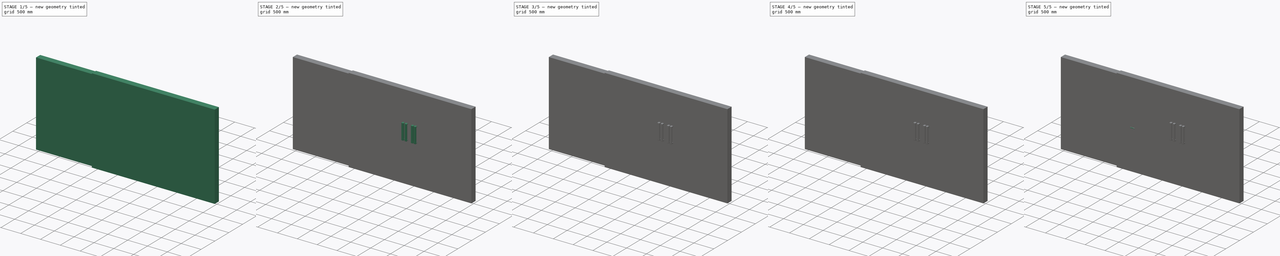
[diagram: build sequence overview — one tinted view per stage of 5, left to right]
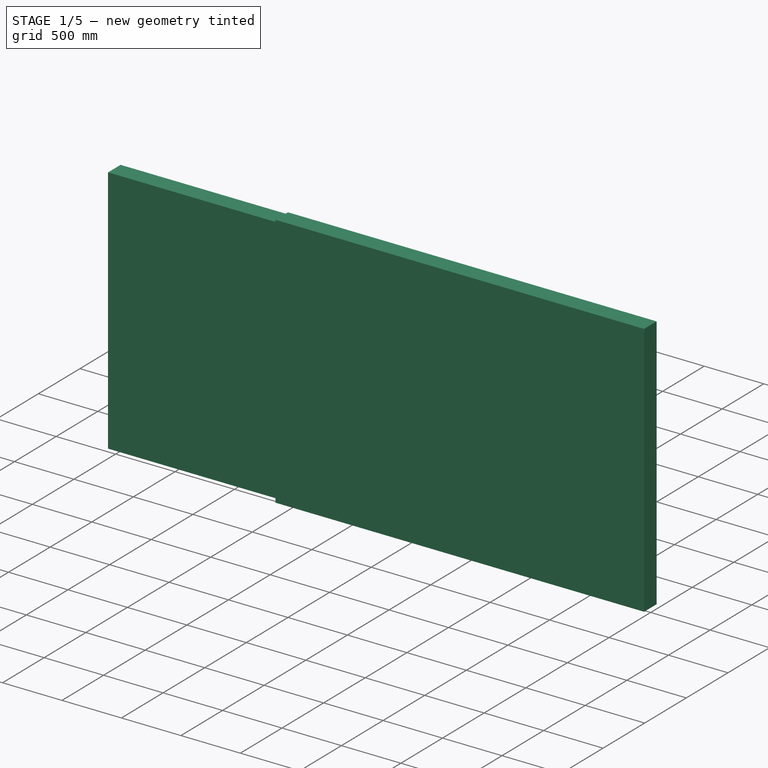
[diagram: stage 1 of 5 — iso view after this stage's code; geometry added in this stage tinted green]
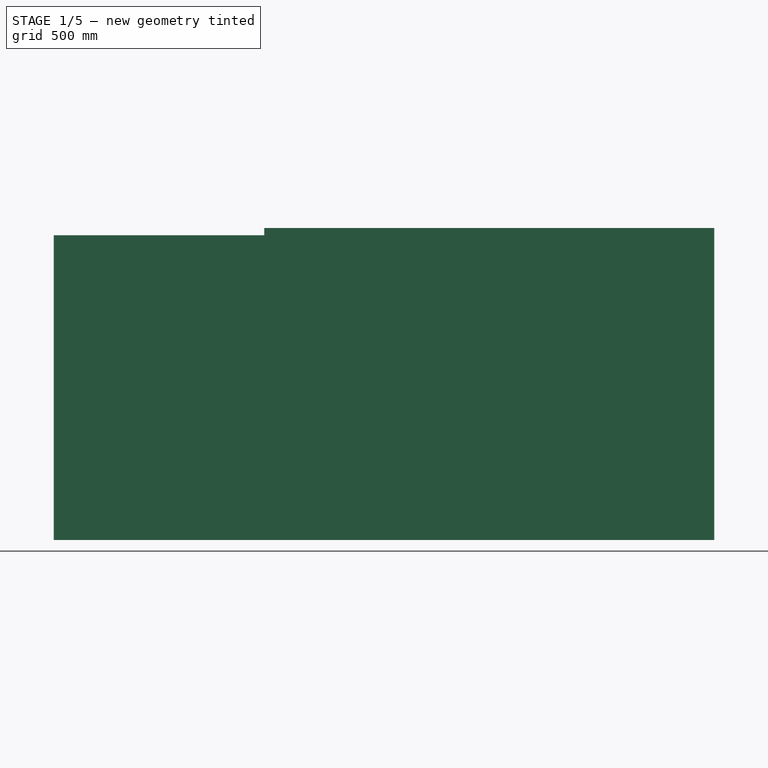
[diagram: stage 1 of 5 — front view after this stage's code; geometry added in this stage tinted green]
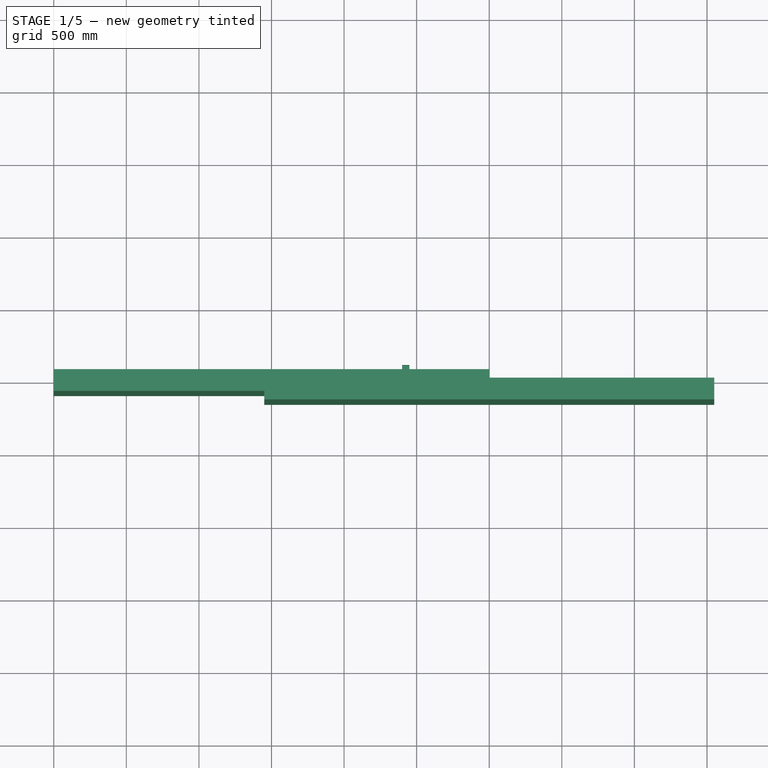
[diagram: stage 1 of 5 — top view after this stage's code; geometry added in this stage tinted green]
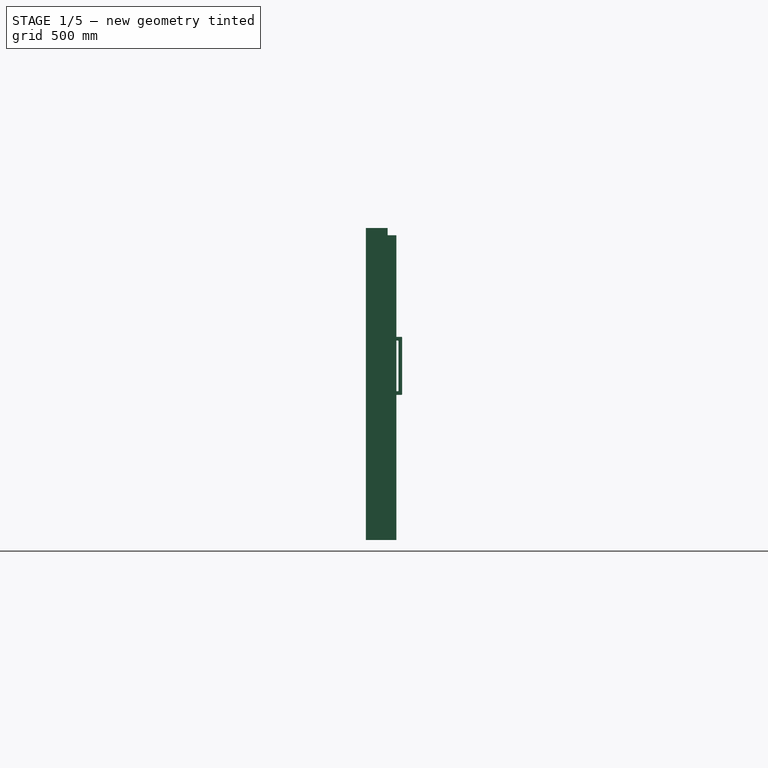
[diagram: stage 1 of 5 — right view after this stage's code; geometry added in this stage tinted green]
FCSTD DOCUMENT  (FreeCAD 0.20R29410 (Git))
Label: Portas
License: All rights reserved
LicenseURL: http://en.wikipedia.org/wiki/All_rights_reserved
objects: Part::Extrusion×31, Sketcher::SketchObject×21, Part::FeaturePython×18, Part::Compound×9, Part::Mirroring×2, App::DocumentObjectGroup×2, Spreadsheet::Sheet×1
note: 81 computed .brp shape members not serialized (recipe doc carries the construction recipe); baked Part::Feature solids carry a one-line shape summary decoded from their .brp

FEATURE [Sketcher::SketchObject] Sketch019  label="portal009"
  FullyConstrained = true
  Placement = pos=(0,0,0) rot=(1,0,0;1.5708rad)
  expr: Constraints[10] = <<Tab_portas_correr _3 folhas_300x210>>.altura
  expr: Constraints[9] = <<Tab_portas_correr _3 folhas_300x210>>.largura / 2
  sketch-geometry (4):
    g0: LineSegment StartX=0 StartY=0 StartZ=0 EndX=-1500 EndY=0 EndZ=0
    g1: LineSegment StartX=-1500 StartY=0 StartZ=0 EndX=-1500 EndY=2100 EndZ=0
    g2: LineSegment StartX=-1500 StartY=2100 StartZ=0 EndX=0 EndY=2100 EndZ=0
    g3: LineSegment StartX=0 StartY=2100 StartZ=0 EndX=0 EndY=0 EndZ=0
  constraints (11):
    c: Coincident(g0,g1)
    c: Coincident(g1,g2)
    c: Coincident(g2,g3)
    c: Coincident(g3,g0)
    c: Horizontal(g0)
    c: Horizontal(g2)
    c: Vertical(g1)
    c: Vertical(g3)
    c: Coincident(g0,g-1)
    c: DistanceX(g2,g2) = 1500
    c: DistanceY(g1,g1) = 2100
FEATURE [Part::Extrusion] Extrude034  label="Folha005"
  Base = -> Sketch019
  Dir = (0,-1,2e-16)
  DirMode = 2
  FaceMakerClass = Part::FaceMakerBullseye
  LengthFwd = 30
  LengthRev = 0
  Placement = pos=(0,-75,0) rot=(0,0,1;0rad)
  Solid = true
  Symmetric = false
  expr: .Placement.Base.y = -<<Tab_portas_correr _3 folhas_300x210>>.especuraparede / 2
  expr: LengthFwd = <<Tab_portas_correr _3 folhas_300x210>>.largurafolha
FEATURE [Sketcher::SketchObject] Sketch020
  FullyConstrained = true
  Placement = pos=(0,0,0) rot=(0.57735,0.57735,0.57735;2.0944rad)
  expr: Constraints[30] = .Constraints.especura
  sketch-geometry (12):
    g0: LineSegment StartX=0 StartY=0 StartZ=0 EndX=-95 EndY=0 EndZ=0
    g1: LineSegment StartX=-100 StartY=5 StartZ=0 EndX=-100 EndY=395 EndZ=0
    g2: LineSegment StartX=-95 StartY=400 StartZ=0 EndX=0 EndY=400 EndZ=0
    g3: LineSegment StartX=0 StartY=400 StartZ=0 EndX=0 EndY=375 EndZ=0
    g4: LineSegment StartX=0 StartY=375 StartZ=0 EndX=-70 EndY=375 EndZ=0
    g5: LineSegment StartX=-75 StartY=370 StartZ=0 EndX=-75 EndY=30 EndZ=0
    g6: LineSegment StartX=-70 StartY=25 StartZ=0 EndX=0 EndY=25 EndZ=0
    g7: LineSegment StartX=0 StartY=25 StartZ=0 EndX=0 EndY=0 EndZ=0
    g8: ArcOfCircle CenterX=-95 CenterY=395 CenterZ=0 NormalX=0 NormalY=0 NormalZ=1 AngleXU=0 Radius=5 StartAngle=1.5708 EndAngle=3.14159
    g9: ArcOfCircle CenterX=-95 CenterY=5 CenterZ=0 NormalX=0 NormalY=0 NormalZ=1 AngleXU=0 Radius=5 StartAngle=3.14159 EndAngle=4.71239
    g10: ArcOfCircle CenterX=-70 CenterY=370 CenterZ=0 NormalX=0 NormalY=0 NormalZ=1 AngleXU=0 Radius=5 StartAngle=1.5708 EndAngle=3.14159
    g11: ArcOfCircle CenterX=-70 CenterY=30 CenterZ=0 NormalX=0 NormalY=0 NormalZ=1 AngleXU=0 Radius=5 StartAngle=3.14159 EndAngle=4.71239
  constraints (31):
    c: Coincident(g2,g3)
    c: Coincident(g7,g0)
    c: Horizontal(g0)
    c: Horizontal(g2)
    c: Vertical(g1)
    c: Vertical(g3)
    c: Coincident(g0,g-1)
    c: Horizontal(g4)
    c: Horizontal(g6)
    c: Vertical(g5)
    c: Coincident(g3,g4)
    c: Equal(g3,g7)
    c: DistanceY(g3,g3) = 25  'especura'
    c: Coincident(g7,g6)
    c: PointOnObject(g6,g-2)
    c: PointOnObject(g2,g-2)
    c: Tangent(g2,g8) = 1.5708
    c: Tangent(g1,g8) = 1.5708
    c: Tangent(g0,g9) = 1.5708
    c: Tangent(g1,g9) = 1.5708
    c: Equal(g9,g8)
    c: Radius(g8) = 5
    c: Tangent(g4,g10) = -1.5708
    c: Tangent(g5,g10) = -1.5708
    c: Tangent(g6,g11) = -1.5708
    c: Tangent(g5,g11) = -1.5708
    c: Equal(g9,g11)
    c: Equal(g10,g8)
    c: DistanceY(g0,g2) = 400
    c: DistanceX(g1,g0) = 100
    c: DistanceX(g1,g5) = 25
FEATURE [Part::Extrusion] Extrude035  label="Macaneta015"
  Base = -> Sketch020
  Dir = (1,0,0)
  DirMode = 2
  FaceMakerClass = Part::FaceMakerBullseye
  LengthFwd = 50
  LengthRev = 0
  Placement = pos=(60,-105,1000) rot=(0,0,1;0rad)
  Solid = true
  Symmetric = false
  expr: .Placement.Base.y = -<<Tab_portas_correr _3 folhas_300x210>>.especuraparede / 2 - <<Tab_portas_correr _3 folhas_300x210>>.largurafolha
  expr: .Placement.Base.z = <<Tab_portas_correr _3 folhas_300x210>>.alturamacaneta
FEATURE [Part::FeaturePython] Clone012  label="Macaneta012"  # Draft clone (typed FeaturePython)
  AttacherType = Attacher::AttachEngine3D
  Fuse = false
  Objects = -> [Extrude035]
  Placement = pos=(-100,-105,1000) rot=(0,0,1;0rad)
  Scale = (1,1,1)
  expr: .Placement.Base.y = -<<Tab_portas_correr _3 folhas_300x210>>.especuraparede / 2 - <<Tab_portas_correr _3 folhas_300x210>>.largurafolha
  expr: .Placement.Base.z = <<Tab_portas_correr _3 folhas_300x210>>.alturamacaneta
FEATURE [Part::FeaturePython] Clone013  label="Macaneta013"  # Draft clone (typed FeaturePython)
  AttacherType = Attacher::AttachEngine3D
  Fuse = false
  Objects = -> [Clone012]
  Placement = pos=(-60,-75,1000) rot=(0,0,1;3.14159rad)
  Scale = (1,1,1)
  expr: .Placement.Base.y = -<<Tab_portas_correr _3 folhas_300x210>>.especuraparede / 2
  expr: .Placement.Base.z = <<Tab_portas_correr _3 folhas_300x210>>.alturamacaneta
FEATURE [Sketcher::SketchObject] Sketch021  label="portal010"
  FullyConstrained = true
  Placement = pos=(0,0,0) rot=(1,0,0;1.5708rad)
  expr: Constraints[10] = <<Tab_portas_correr _3 folhas_300x210>>.altura
  expr: Constraints[9] = <<Tab_portas_correr _3 folhas_300x210>>.largura
  sketch-geometry (4):
    g0: LineSegment StartX=0 StartY=0 StartZ=0 EndX=-3000 EndY=0 EndZ=0
    g1: LineSegment StartX=-3000 StartY=0 StartZ=0 EndX=-3000 EndY=2100 EndZ=0
    g2: LineSegment StartX=-3000 StartY=2100 StartZ=0 EndX=0 EndY=2100 EndZ=0
    g3: LineSegment StartX=0 StartY=2100 StartZ=0 EndX=0 EndY=0 EndZ=0
  constraints (11):
    c: Coincident(g0,g1)
    c: Coincident(g1,g2)
    c: Coincident(g2,g3)
    c: Coincident(g3,g0)
    c: Horizontal(g0)
    c: Horizontal(g2)
    c: Vertical(g1)
    c: Vertical(g3)
    c: Coincident(g0,g-1)
    c: DistanceX(g2,g2) = 3000
    c: DistanceY(g1,g1) = 2100
FEATURE [Part::Extrusion] Extrude036  label="Folha007"
  Base = -> Sketch021
  Dir = (0,-1,2e-16)
  DirMode = 2
  FaceMakerClass = Part::FaceMakerBullseye
  LengthFwd = 30
  LengthRev = 0
  Solid = true
  Symmetric = false
  expr: LengthFwd = <<Tab_portas_correr _3 folhas_300x210>>.largurafolha
FEATURE [Sketcher::SketchObject] Sketch022
  FullyConstrained = true
  Placement = pos=(0,0,0) rot=(0.57735,0.57735,0.57735;2.0944rad)
  expr: Constraints[30] = .Constraints.especura
  sketch-geometry (12):
    g0: LineSegment StartX=0 StartY=0 StartZ=0 EndX=-95 EndY=0 EndZ=0
    g1: LineSegment StartX=-100 StartY=5 StartZ=0 EndX=-100 EndY=395 EndZ=0
    g2: LineSegment StartX=-95 StartY=400 StartZ=0 EndX=0 EndY=400 EndZ=0
    g3: LineSegment StartX=0 StartY=400 StartZ=0 EndX=0 EndY=375 EndZ=0
    g4: LineSegment StartX=0 StartY=375 StartZ=0 EndX=-70 EndY=375 EndZ=0
    g5: LineSegment StartX=-75 StartY=370 StartZ=0 EndX=-75 EndY=30 EndZ=0
    g6: LineSegment StartX=-70 StartY=25 StartZ=0 EndX=0 EndY=25 EndZ=0
    g7: LineSegment StartX=0 StartY=25 StartZ=0 EndX=0 EndY=0 EndZ=0
    g8: ArcOfCircle CenterX=-95 CenterY=395 CenterZ=0 NormalX=0 NormalY=0 NormalZ=1 AngleXU=0 Radius=5 StartAngle=1.5708 EndAngle=3.14159
    g9: ArcOfCircle CenterX=-95 CenterY=5 CenterZ=0 NormalX=0 NormalY=0 NormalZ=1 AngleXU=0 Radius=5 StartAngle=3.14159 EndAngle=4.71239
    g10: ArcOfCircle CenterX=-70 CenterY=370 CenterZ=0 NormalX=0 NormalY=0 NormalZ=1 AngleXU=0 Radius=5 StartAngle=1.5708 EndAngle=3.14159
    g11: ArcOfCircle CenterX=-70 CenterY=30 CenterZ=0 NormalX=0 NormalY=0 NormalZ=1 AngleXU=0 Radius=5 StartAngle=3.14159 EndAngle=4.71239
  constraints (31):
    c: Coincident(g2,g3)
    c: Coincident(g7,g0)
    c: Horizontal(g0)
    c: Horizontal(g2)
    c: Vertical(g1)
    c: Vertical(g3)
    c: Coincident(g0,g-1)
    c: Horizontal(g4)
    c: Horizontal(g6)
    c: Vertical(g5)
    c: Coincident(g3,g4)
    c: Equal(g3,g7)
    c: DistanceY(g3,g3) = 25  'especura'
    c: Coincident(g7,g6)
    c: PointOnObject(g6,g-2)
    c: PointOnObject(g2,g-2)
    c: Tangent(g2,g8) = 1.5708
    c: Tangent(g1,g8) = 1.5708
    c: Tangent(g0,g9) = 1.5708
    c: Tangent(g1,g9) = 1.5708
    c: Equal(g9,g8)
    c: Radius(g8) = 5
    c: Tangent(g4,g10) = -1.5708
    c: Tangent(g5,g10) = -1.5708
    c: Tangent(g6,g11) = -1.5708
    c: Tangent(g5,g11) = -1.5708
    c: Equal(g9,g11)
    c: Equal(g10,g8)
    c: DistanceY(g0,g2) = 400
    c: DistanceX(g1,g0) = 100
    c: DistanceX(g1,g5) = 25
FEATURE [Part::Extrusion] Extrude037  label="Macaneta019"
  Base = -> Sketch022
  Dir = (1,0,0)
  DirMode = 2
  FaceMakerClass = Part::FaceMakerBullseye
  LengthFwd = 50
  LengthRev = 0
  Placement = pos=(-600,-30,1000) rot=(0,0,1;0rad)
  Solid = true
  Symmetric = false
  expr: .Placement.Base.x = -<<Tab_portas_correr _3 folhas_300x210>>.largura * 0.2
  expr: .Placement.Base.y = -<<Tab_portas_correr _3 folhas_300x210>>.largurafolha
  expr: .Placement.Base.z = <<Tab_portas_correr _3 folhas_300x210>>.alturamacaneta
FEATURE [Part::FeaturePython] Clone015  label="Macaneta020"  # Draft clone (typed FeaturePython)
  AttacherType = Attacher::AttachEngine3D
  Fuse = false
  Objects = -> [Extrude037]
  Placement = pos=(-550,0,1000) rot=(0,0,1;3.14159rad)
  Scale = (1,1,1)
  expr: .Placement.Base.x = -<<Tab_portas_correr _3 folhas_300x210>>.largura * 0.2 + 50mm
  expr: .Placement.Base.z = <<Tab_portas_correr _3 folhas_300x210>>.alturamacaneta
FEATURE [Part::Compound] Compound008  label="Porta de correr 1 folha "
  Links = -> [Extrude036,Extrude037,Clone015]
FEATURE [App::DocumentObjectGroup] Group  label="Portas"
  Group = -> [Compound,Compound002,Compound004,Compound005,Compound006,Compound007,Compound008]
FEATURE [Sketcher::SketchObject] Sketch001  label="portal001"
  FullyConstrained = true
  Placement = pos=(0,0,0) rot=(1,0,0;1.5708rad)
  expr: Constraints[10] = <<Tab_portas_correr _3 folhas_300x210>>.largura + 2 * <<Tab_portas_correr _3 folhas_300x210>>.larguraportal
  expr: Constraints[9] = <<Tab_portas_correr _3 folhas_300x210>>.altura + <<Tab_portas_correr _3 folhas_300x210>>.larguraportal
  sketch-geometry (4):
    g0: LineSegment StartX=-1550 StartY=0 StartZ=0 EndX=-1550 EndY=2150 EndZ=0
    g1: LineSegment StartX=-1550 StartY=2150 StartZ=0 EndX=1550 EndY=2150 EndZ=0
    g2: LineSegment StartX=1550 StartY=2150 StartZ=0 EndX=1550 EndY=0 EndZ=0
    g3: LineSegment StartX=-1550 StartY=0 StartZ=0 EndX=1550 EndY=0 EndZ=0
  constraints (11):
    c: Vertical(g0)
    c: Coincident(g1,g0)
    c: Horizontal(g1)
    c: Coincident(g2,g1)
    c: PointOnObject(g2,g-1)
    c: Vertical(g2)
    c: Coincident(g3,g0)
    c: Coincident(g3,g2)
    c: Symmetric(g0,g2,g-1)
    c: DistanceY(g0,g0) = 2150
    c: DistanceX(g1,g1) = 3100
FEATURE [Sketcher::SketchObject] Sketch012  label="portal007"
  FullyConstrained = true
  Placement = pos=(0,0,0) rot=(1,0,0;1.5708rad)
  expr: Constraints[10] = <<Tab_portas_correr _3 folhas_300x210>>.largura
  expr: Constraints[9] = <<Tab_portas_correr _3 folhas_300x210>>.altura
  sketch-geometry (4):
    g0: LineSegment StartX=-1500 StartY=0 StartZ=0 EndX=-1500 EndY=2100 EndZ=0
    g1: LineSegment StartX=-1500 StartY=2100 StartZ=0 EndX=1500 EndY=2100 EndZ=0
    g2: LineSegment StartX=1500 StartY=2100 StartZ=0 EndX=1500 EndY=0 EndZ=0
    g3: LineSegment StartX=-1500 StartY=0 StartZ=0 EndX=1500 EndY=0 EndZ=0
  constraints (11):
    c: Vertical(g0)
    c: Coincident(g1,g0)
    c: Horizontal(g1)
    c: Coincident(g2,g1)
    c: PointOnObject(g2,g-1)
    c: Vertical(g2)
    c: Coincident(g3,g0)
    c: Coincident(g3,g2)
    c: Symmetric(g0,g2,g-1)
    c: DistanceY(g0,g0) = 2100
    c: DistanceX(g1,g1) = 3000
FEATURE [Part::Extrusion] Extrude001  label="Corte postas com portal"
  Base = -> Sketch001
  Dir = (0,-1,2e-16)
  DirMode = 2
  FaceMakerClass = Part::FaceMakerBullseye
  LengthFwd = 150
  LengthRev = 0
  Solid = true
  Symmetric = false
  expr: LengthFwd = <<Tab_portas_correr _3 folhas_300x210>>.especuraparede
FEATURE [Part::Extrusion] Extrude012  label="Cortes porta sem portal"
  Base = -> Sketch012
  Dir = (0,-1,2e-16)
  DirMode = 2
  FaceMakerClass = Part::FaceMakerBullseye
  LengthFwd = 150
  LengthRev = 0
  Solid = true
  Symmetric = false
  expr: LengthFwd = <<Tab_portas_correr _3 folhas_300x210>>.especuraparede
FEATURE [Part::FeaturePython] Component  label="Portas sem portal"  # Arch/BIM 93 (typed FeaturePython)
  Base = -> Extrude012
  HorizontalArea = 0
  IfcData = attributes={"GlobalId": {"name": "GlobalId", "type": "IfcGloballyUniqueId", "is_enum": false, "enum_values": []}, "Description": {"... (+446 chars omitted),+1 more (map truncated)
  IfcType = 93
  MoveBase = false
  MoveWithHost = false
  PerimeterLength = 0
  Placement = pos=(-1500,60,0) rot=(0,0,1;0rad)
  PredefinedType = 0
  VerticalArea = 0
FEATURE [Part::FeaturePython] Component001  label="Portas com portal"  # Arch/BIM 93 (typed FeaturePython)
  Base = -> Extrude001
  HorizontalArea = 0
  IfcData = attributes={"GlobalId": {"name": "GlobalId", "type": "IfcGloballyUniqueId", "is_enum": false, "enum_values": []}, "Description": {"... (+446 chars omitted),+1 more (map truncated)
  IfcType = 93
  MoveBase = false
  MoveWithHost = false
  PerimeterLength = 0
  PredefinedType = 0
  VerticalArea = 0
FEATURE [App::DocumentObjectGroup] Group001  label="Elementos de abertura"
  Group = -> [Component,Component001]
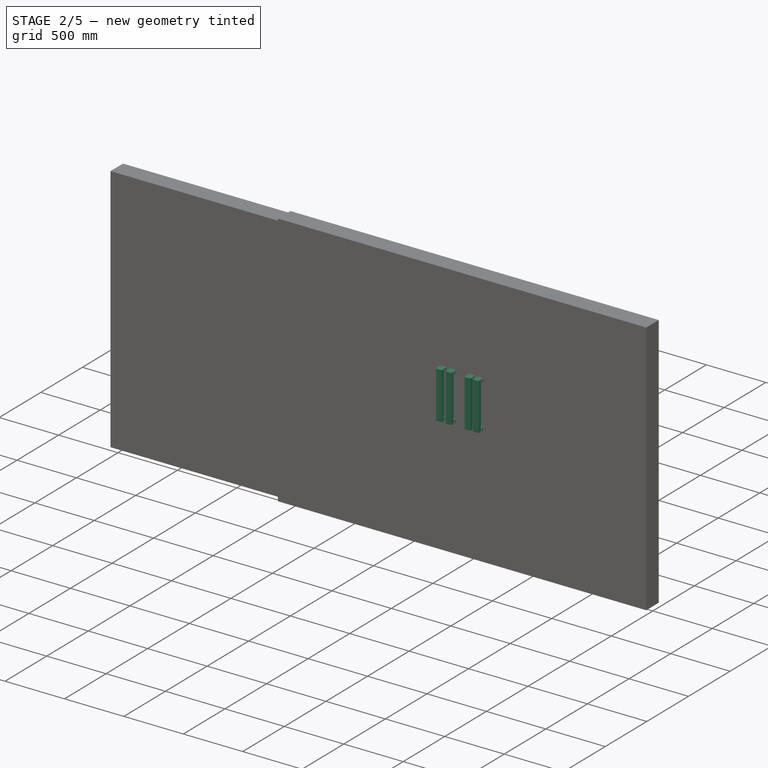
[diagram: stage 2 of 5 — iso view after this stage's code; geometry added in this stage tinted green]
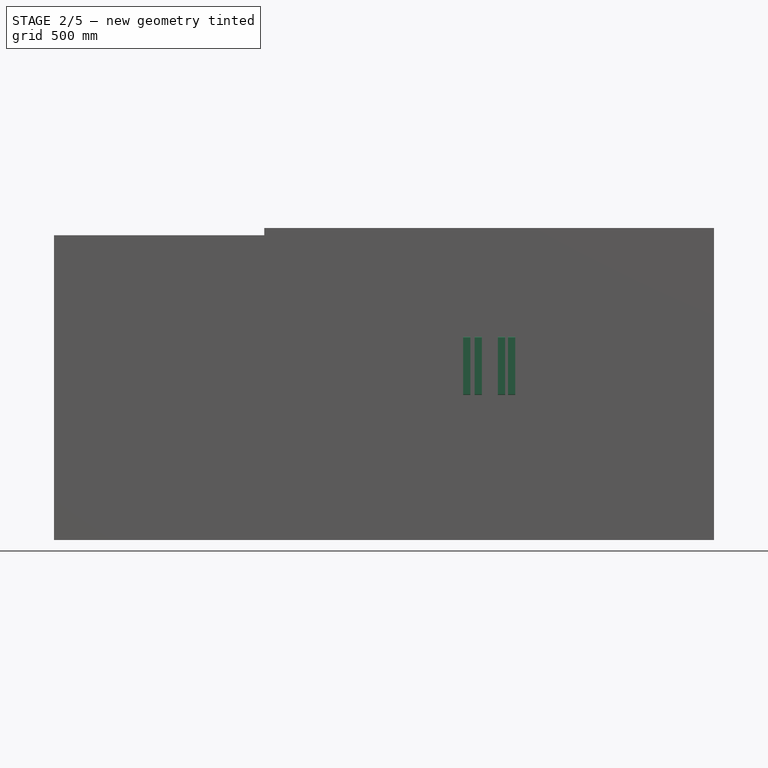
[diagram: stage 2 of 5 — front view after this stage's code; geometry added in this stage tinted green]
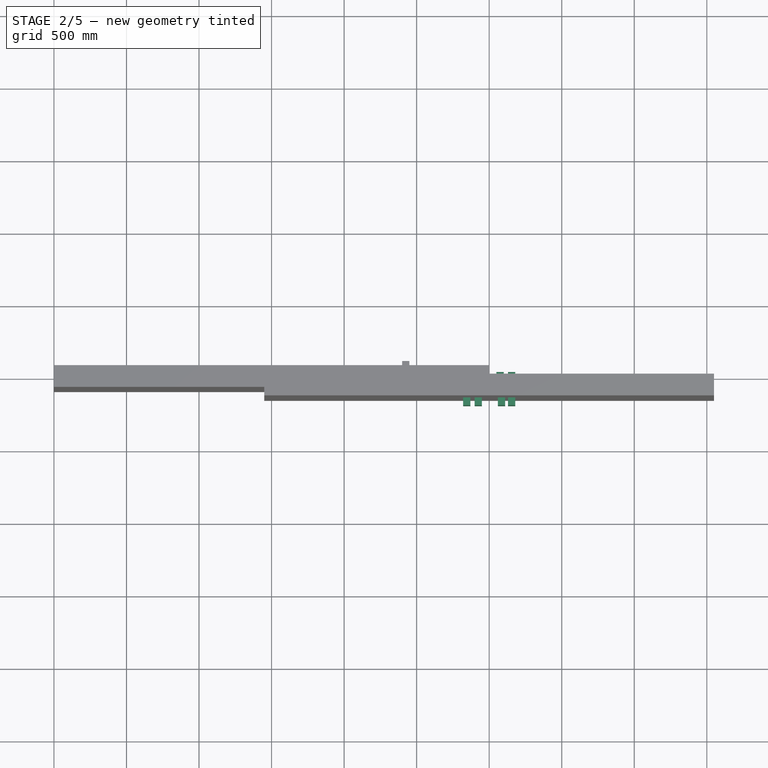
[diagram: stage 2 of 5 — top view after this stage's code; geometry added in this stage tinted green]
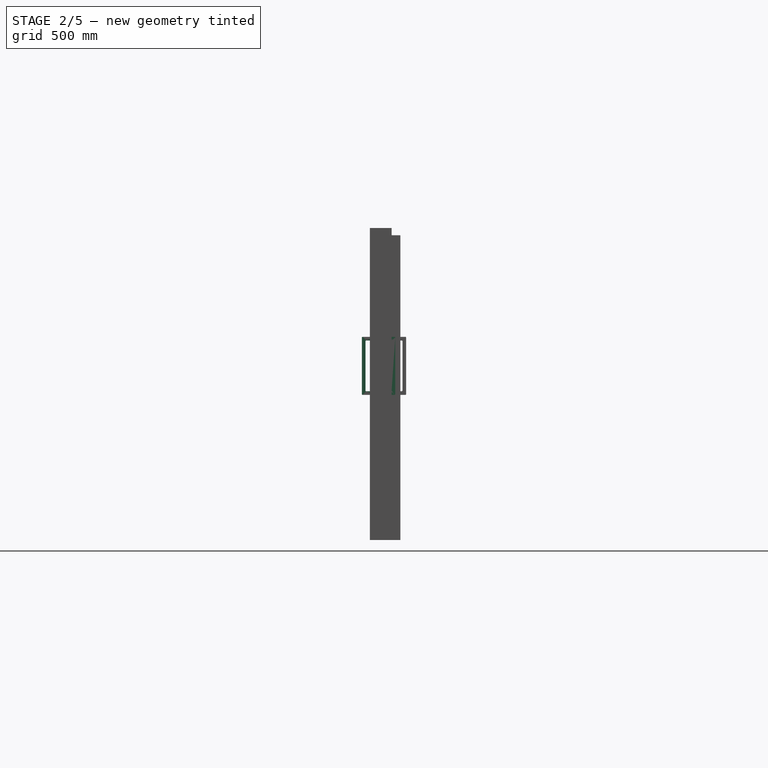
[diagram: stage 2 of 5 — right view after this stage's code; geometry added in this stage tinted green]
FEATURE [Spreadsheet::Sheet] Spreadsheet  label="Tab_portas_correr _3 folhas_300x210"
  cells = A1=DIMENÇOES; A2=Largura; B2(largura)==3m; A3=Altura; B3(altura)==2.1m; A4=Especura parede; B4(especuraparede)==0.15m; A5=Largura Portal; B5(larguraportal)==5cm; A6=Largura Folha; B6(largurafolha)==30mm; A7=Altura macaneta; B7(alturamacaneta)==1m; A8=Largura Esquadrias; B8(larguraesquadria)==50mm
FEATURE [Sketcher::SketchObject] Sketch  label="portal"
  FullyConstrained = true
  Placement = pos=(0,0,0) rot=(1,0,0;1.5708rad)
  expr: Constraints[19] = <<Tab_portas_correr _3 folhas_300x210>>.larguraportal
  expr: Constraints[20] = <<Tab_portas_correr _3 folhas_300x210>>.larguraportal
  expr: Constraints[6] = <<Tab_portas_correr _3 folhas_300x210>>.largura
  expr: Constraints[7] = <<Tab_portas_correr _3 folhas_300x210>>.altura
  sketch-geometry (8):
    g0: LineSegment StartX=1500 StartY=0 StartZ=0 EndX=1500 EndY=2100 EndZ=0
    g1: LineSegment StartX=1500 StartY=2100 StartZ=0 EndX=-1500 EndY=2100 EndZ=0
    g2: LineSegment StartX=-1500 StartY=2100 StartZ=0 EndX=-1500 EndY=0 EndZ=0
    g3: LineSegment StartX=-1500 StartY=0 StartZ=0 EndX=-1550 EndY=0 EndZ=0
    g4: LineSegment StartX=-1550 StartY=0 StartZ=0 EndX=-1550 EndY=2150 EndZ=0
    g5: LineSegment StartX=-1550 StartY=2150 StartZ=0 EndX=1550 EndY=2150 EndZ=0
    g6: LineSegment StartX=1550 StartY=2150 StartZ=0 EndX=1550 EndY=0 EndZ=0
    g7: LineSegment StartX=1550 StartY=0 StartZ=0 EndX=1500 EndY=0 EndZ=0
  constraints (23):
    c: Coincident(g0,g1)
    c: Coincident(g1,g2)
    c: Horizontal(g1)
    c: Vertical(g0)
    c: Vertical(g2)
    c: Symmetric(g2,g0,g-1)
    c: DistanceX(g1,g1) = 3000
    c: DistanceY(g2,g2) = 2100
    c: Coincident(g4,g3)
    c: Vertical(g4)
    c: Coincident(g5,g4)
    c: Horizontal(g5)
    c: Coincident(g6,g5)
    c: PointOnObject(g6,g-1)
    c: Vertical(g6)
    c: Coincident(g7,g6)
    c: Horizontal(g7)
    c: Equal(g3,g7)
    c: Horizontal(g3)
    c: DistanceX(g3,g3) = 50
    c: DistanceY(g1,g4) = 50
    c: Coincident(g2,g3)
    c: Coincident(g0,g7)
FEATURE [Part::Extrusion] Extrude  label="Portal"
  Base = -> Sketch
  Dir = (0,-1,2e-16)
  DirMode = 2
  FaceMakerClass = Part::FaceMakerBullseye
  LengthFwd = 150
  LengthRev = 0
  Solid = true
  Symmetric = false
  expr: LengthFwd = <<Tab_portas_correr _3 folhas_300x210>>.especuraparede
FEATURE [Sketcher::SketchObject] Sketch002  label="portal002"
  FullyConstrained = true
  Placement = pos=(0,0,0) rot=(1,0,0;1.5708rad)
  expr: Constraints[10] = <<Tab_portas_correr _3 folhas_300x210>>.altura
  expr: Constraints[9] = <<Tab_portas_correr _3 folhas_300x210>>.largura / 2
  sketch-geometry (4):
    g0: LineSegment StartX=0 StartY=0 StartZ=0 EndX=-1500 EndY=0 EndZ=0
    g1: LineSegment StartX=-1500 StartY=0 StartZ=0 EndX=-1500 EndY=2100 EndZ=0
    g2: LineSegment StartX=-1500 StartY=2100 StartZ=0 EndX=0 EndY=2100 EndZ=0
    g3: LineSegment StartX=0 StartY=2100 StartZ=0 EndX=0 EndY=0 EndZ=0
  constraints (11):
    c: Coincident(g0,g1)
    c: Coincident(g1,g2)
    c: Coincident(g2,g3)
    c: Coincident(g3,g0)
    c: Horizontal(g0)
    c: Horizontal(g2)
    c: Vertical(g1)
    c: Vertical(g3)
    c: Coincident(g0,g-1)
    c: DistanceX(g2,g2) = 1500
    c: DistanceY(g1,g1) = 2100
FEATURE [Part::Extrusion] Extrude002  label="Folha"
  Base = -> Sketch002
  Dir = (0,-1,2e-16)
  DirMode = 2
  FaceMakerClass = Part::FaceMakerBullseye
  LengthFwd = 30
  LengthRev = 0
  Placement = pos=(0,-75,0) rot=(0,0,1;0rad)
  Solid = true
  Symmetric = false
  expr: .Placement.Base.y = -<<Tab_portas_correr _3 folhas_300x210>>.especuraparede / 2
  expr: LengthFwd = <<Tab_portas_correr _3 folhas_300x210>>.largurafolha
FEATURE [Part::FeaturePython] Clone  label="Folha001"  # Draft clone (typed FeaturePython)
  AttacherType = Attacher::AttachEngine3D
  Fuse = false
  Objects = -> [Extrude002]
  Placement = pos=(1500,-75,0) rot=(0,0,1;0rad)
  Scale = (1,1,1)
  expr: .Placement.Base.x = <<Tab_portas_correr _3 folhas_300x210>>.largura / 2
  expr: .Placement.Base.y = -<<Tab_portas_correr _3 folhas_300x210>>.especuraparede / 2
FEATURE [Sketcher::SketchObject] Sketch003
  FullyConstrained = true
  Placement = pos=(0,0,0) rot=(0.57735,0.57735,0.57735;2.0944rad)
  expr: Constraints[30] = .Constraints.especura
  sketch-geometry (12):
    g0: LineSegment StartX=0 StartY=0 StartZ=0 EndX=-95 EndY=0 EndZ=0
    g1: LineSegment StartX=-100 StartY=5 StartZ=0 EndX=-100 EndY=395 EndZ=0
    g2: LineSegment StartX=-95 StartY=400 StartZ=0 EndX=0 EndY=400 EndZ=0
    g3: LineSegment StartX=0 StartY=400 StartZ=0 EndX=0 EndY=375 EndZ=0
    g4: LineSegment StartX=0 StartY=375 StartZ=0 EndX=-70 EndY=375 EndZ=0
    g5: LineSegment StartX=-75 StartY=370 StartZ=0 EndX=-75 EndY=30 EndZ=0
    g6: LineSegment StartX=-70 StartY=25 StartZ=0 EndX=0 EndY=25 EndZ=0
    g7: LineSegment StartX=0 StartY=25 StartZ=0 EndX=0 EndY=0 EndZ=0
    g8: ArcOfCircle CenterX=-95 CenterY=395 CenterZ=0 NormalX=0 NormalY=0 NormalZ=1 AngleXU=0 Radius=5 StartAngle=1.5708 EndAngle=3.14159
    g9: ArcOfCircle CenterX=-95 CenterY=5 CenterZ=0 NormalX=0 NormalY=0 NormalZ=1 AngleXU=0 Radius=5 StartAngle=3.14159 EndAngle=4.71239
    g10: ArcOfCircle CenterX=-70 CenterY=370 CenterZ=0 NormalX=0 NormalY=0 NormalZ=1 AngleXU=0 Radius=5 StartAngle=1.5708 EndAngle=3.14159
    g11: ArcOfCircle CenterX=-70 CenterY=30 CenterZ=0 NormalX=0 NormalY=0 NormalZ=1 AngleXU=0 Radius=5 StartAngle=3.14159 EndAngle=4.71239
  constraints (31):
    c: Coincident(g2,g3)
    c: Coincident(g7,g0)
    c: Horizontal(g0)
    c: Horizontal(g2)
    c: Vertical(g1)
    c: Vertical(g3)
    c: Coincident(g0,g-1)
    c: Horizontal(g4)
    c: Horizontal(g6)
    c: Vertical(g5)
    c: Coincident(g3,g4)
    c: Equal(g3,g7)
    c: DistanceY(g3,g3) = 25  'especura'
    c: Coincident(g7,g6)
    c: PointOnObject(g6,g-2)
    c: PointOnObject(g2,g-2)
    c: Tangent(g2,g8) = 1.5708
    c: Tangent(g1,g8) = 1.5708
    c: Tangent(g0,g9) = 1.5708
    c: Tangent(g1,g9) = 1.5708
    c: Equal(g9,g8)
    c: Radius(g8) = 5
    c: Tangent(g4,g10) = -1.5708
    c: Tangent(g5,g10) = -1.5708
    c: Tangent(g6,g11) = -1.5708
    c: Tangent(g5,g11) = -1.5708
    c: Equal(g9,g11)
    c: Equal(g10,g8)
    c: DistanceY(g0,g2) = 400
    c: DistanceX(g1,g0) = 100
    c: DistanceX(g1,g5) = 25
FEATURE [Part::Extrusion] Extrude003  label="Macaneta"
  Base = -> Sketch003
  Dir = (1,0,0)
  DirMode = 2
  FaceMakerClass = Part::FaceMakerBullseye
  LengthFwd = 50
  LengthRev = 0
  Placement = pos=(130,-105,1000) rot=(0,0,1;0rad)
  Solid = true
  Symmetric = false
  expr: .Placement.Base.y = -<<Tab_portas_correr _3 folhas_300x210>>.especuraparede / 2 - <<Tab_portas_correr _3 folhas_300x210>>.largurafolha
  expr: .Placement.Base.z = <<Tab_portas_correr _3 folhas_300x210>>.alturamacaneta
FEATURE [Part::FeaturePython] Clone001  label="Macaneta001"  # Draft clone (typed FeaturePython)
  AttacherType = Attacher::AttachEngine3D
  Fuse = false
  Objects = -> [Extrude003]
  Placement = pos=(-180,-105,1000) rot=(0,0,1;0rad)
  Scale = (1,1,1)
  expr: .Placement.Base.y = -<<Tab_portas_correr _3 folhas_300x210>>.especuraparede / 2 - <<Tab_portas_correr _3 folhas_300x210>>.largurafolha
  expr: .Placement.Base.z = <<Tab_portas_correr _3 folhas_300x210>>.alturamacaneta
FEATURE [Part::FeaturePython] Clone002  label="Macaneta002"  # Draft clone (typed FeaturePython)
  AttacherType = Attacher::AttachEngine3D
  Fuse = false
  Objects = -> [Clone001]
  Placement = pos=(-130,-75,1000) rot=(0,0,1;3.14159rad)
  Scale = (1,1,1)
  expr: .Placement.Base.y = -<<Tab_portas_correr _3 folhas_300x210>>.especuraparede / 2
  expr: .Placement.Base.z = <<Tab_portas_correr _3 folhas_300x210>>.alturamacaneta
FEATURE [Part::FeaturePython] Clone003  label="Macaneta003"  # Draft clone (typed FeaturePython)
  AttacherType = Attacher::AttachEngine3D
  Fuse = false
  Objects = -> [Clone002]
  Placement = pos=(180,-75,1000) rot=(0,0,1;3.14159rad)
  Scale = (1,1,1)
  expr: .Placement.Base.y = -<<Tab_portas_correr _3 folhas_300x210>>.especuraparede / 2
  expr: .Placement.Base.z = <<Tab_portas_correr _3 folhas_300x210>>.alturamacaneta
FEATURE [Part::Extrusion] Extrude032  label="Folha de vidro 008"
  Base = -> Sketch017
  Dir = (0,-1,2e-16)
  DirMode = 2
  FaceMakerClass = Part::FaceMakerBullseye
  LengthFwd = 10
  LengthRev = 0
  Placement = pos=(-2000,45,0) rot=(0,0,1;0rad)
  Solid = true
  Symmetric = false
  expr: .Placement.Base.x = -<<Tab_portas_correr _3 folhas_300x210>>.largura / 3 * 2
  expr: .Placement.Base.y = -<<Tab_portas_correr _3 folhas_300x210>>.largurafolha / 2 + <<Tab_portas_correr _3 folhas_300x210>>.largurafolha * 2
  expr: LengthFwd = 10mm
FEATURE [Part::FeaturePython] Clone011  label="Folha004"  # Draft clone (typed FeaturePython)
  AttacherType = Attacher::AttachEngine3D
  Fuse = false
  Objects = -> [Extrude034]
  Placement = pos=(1500,-75,0) rot=(0,0,1;0rad)
  Scale = (1,1,1)
  expr: .Placement.Base.x = <<Tab_portas_correr _3 folhas_300x210>>.largura / 2
  expr: .Placement.Base.y = -<<Tab_portas_correr _3 folhas_300x210>>.especuraparede / 2
FEATURE [Part::FeaturePython] Clone014  label="Macaneta014"  # Draft clone (typed FeaturePython)
  AttacherType = Attacher::AttachEngine3D
  Fuse = false
  Objects = -> [Clone013]
  Placement = pos=(100,-75,1000) rot=(0,0,1;3.14159rad)
  Scale = (1,1,1)
  expr: .Placement.Base.y = -<<Tab_portas_correr _3 folhas_300x210>>.especuraparede / 2
  expr: .Placement.Base.z = <<Tab_portas_correr _3 folhas_300x210>>.alturamacaneta
FEATURE [Part::Compound] Compound  label="Porta de abrir 2 folhas "
  Links = -> [Extrude,Extrude002,Clone,Extrude003,Clone001,Clone002,Clone003]
FEATURE [Part::Compound] Compound007  label="porta de correr 2 folhas "
  Links = -> [Clone011,Clone012,Clone013,Clone014,Extrude034,Extrude035]
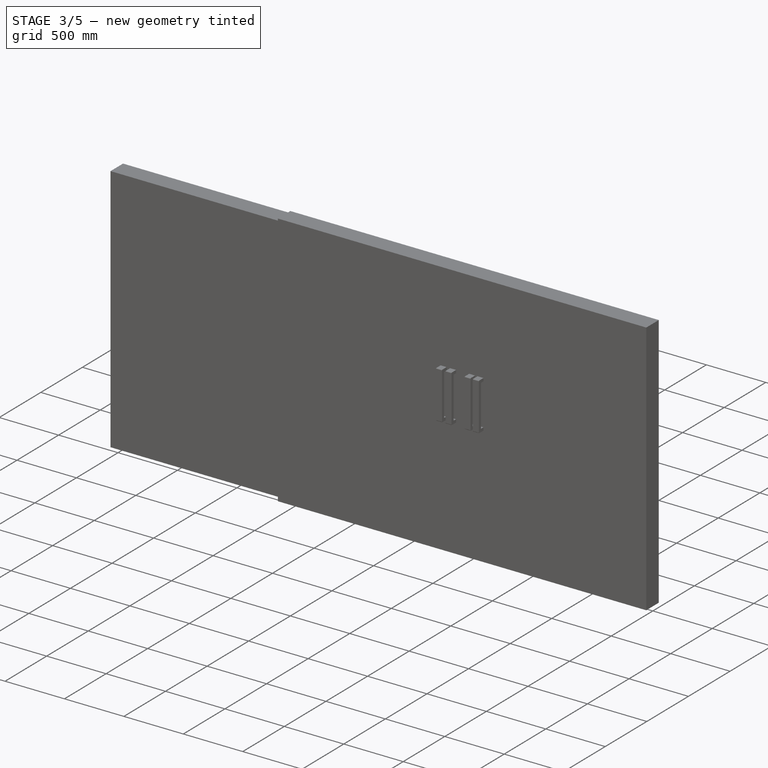
[diagram: stage 3 of 5 — iso view after this stage's code; geometry added in this stage tinted green]
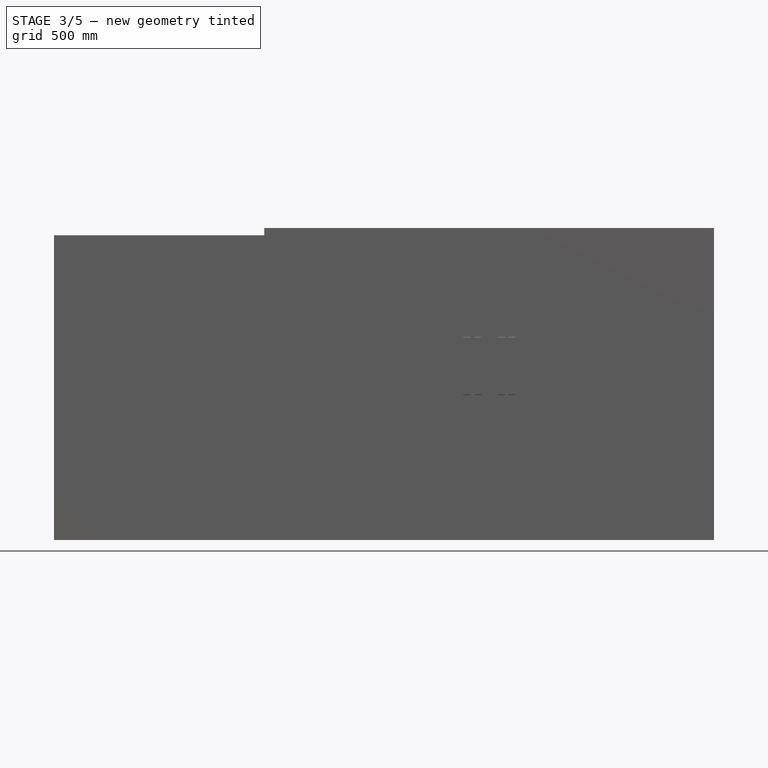
[diagram: stage 3 of 5 — front view after this stage's code; geometry added in this stage tinted green]
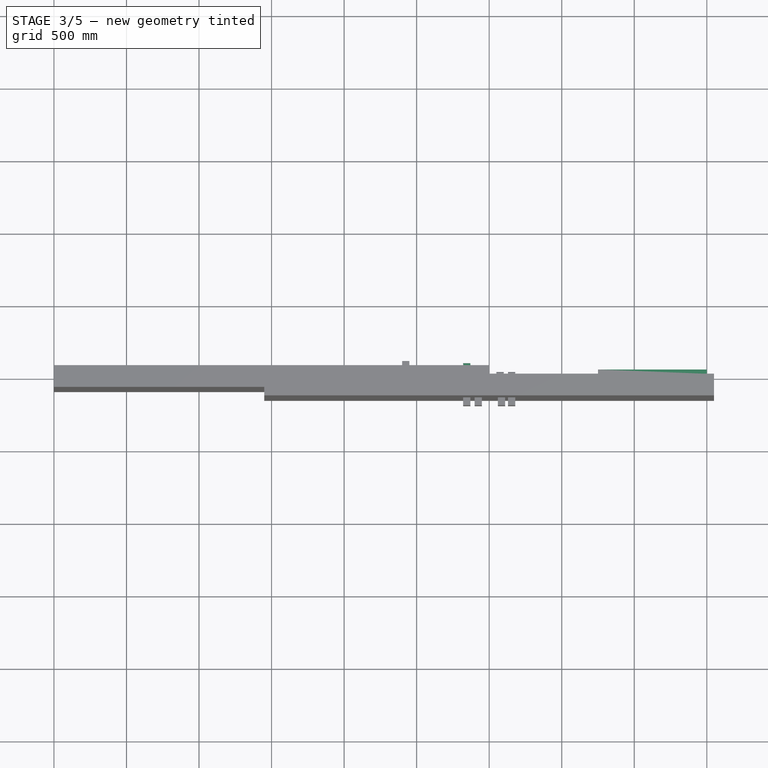
[diagram: stage 3 of 5 — top view after this stage's code; geometry added in this stage tinted green]
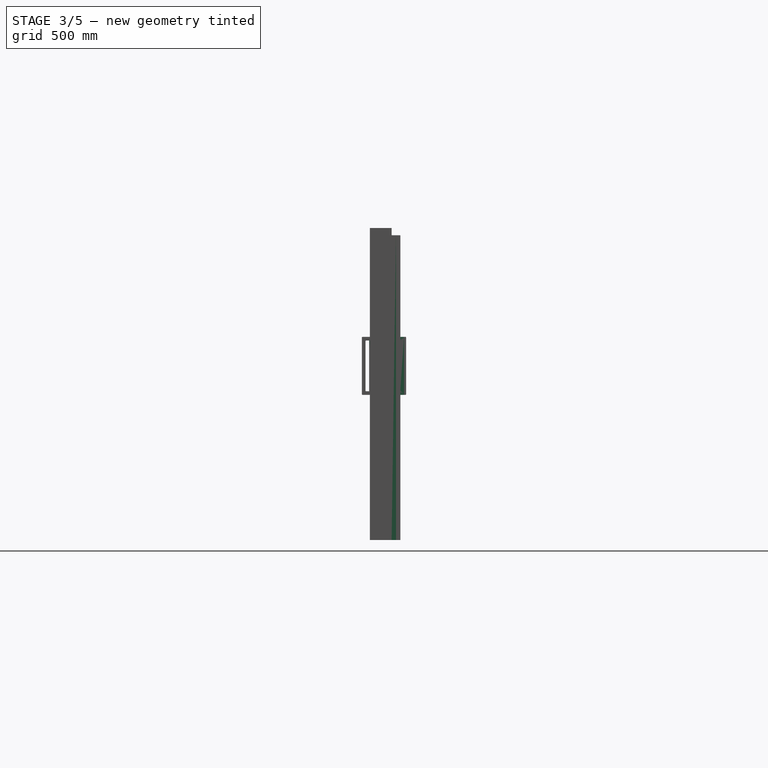
[diagram: stage 3 of 5 — right view after this stage's code; geometry added in this stage tinted green]
FEATURE [Part::Extrusion] Extrude018  label="esquadria002"
  Base = -> Sketch013
  Dir = (0,-1,2e-16)
  DirMode = 2
  FaceMakerClass = Part::FaceMakerBullseye
  LengthFwd = 30
  LengthRev = 0
  Placement = pos=(1500,30,0) rot=(0,0,1;0rad)
  Solid = true
  Symmetric = false
  expr: .Placement.Base.x = <<Tab_portas_correr _3 folhas_300x210>>.largura / 4 * 2
  expr: .Placement.Base.y = <<Tab_portas_correr _3 folhas_300x210>>.largurafolha
  expr: LengthFwd = <<Tab_portas_correr _3 folhas_300x210>>.largurafolha
FEATURE [Part::Extrusion] Extrude019  label="Folha de vidro 002"
  Base = -> Sketch014
  Dir = (0,-1,2e-16)
  DirMode = 2
  FaceMakerClass = Part::FaceMakerBullseye
  LengthFwd = 10
  LengthRev = 0
  Placement = pos=(1500,15,0) rot=(0,0,1;0rad)
  Solid = true
  Symmetric = false
  expr: .Placement.Base.x = <<Tab_portas_correr _3 folhas_300x210>>.largura / 4 * 2
  expr: .Placement.Base.y = -<<Tab_portas_correr _3 folhas_300x210>>.largurafolha / 2 + <<Tab_portas_correr _3 folhas_300x210>>.largurafolha
  expr: LengthFwd = 10mm
FEATURE [Part::Extrusion] Extrude020  label="esquadria003"
  Base = -> Sketch013
  Dir = (0,-1,2e-16)
  DirMode = 2
  FaceMakerClass = Part::FaceMakerBullseye
  LengthFwd = 30
  LengthRev = 0
  Placement = pos=(-750,30,0) rot=(0,0,1;0rad)
  Solid = true
  Symmetric = false
  expr: .Placement.Base.x = -<<Tab_portas_correr _3 folhas_300x210>>.largura / 4
  expr: .Placement.Base.y = <<Tab_portas_correr _3 folhas_300x210>>.largurafolha
  expr: LengthFwd = <<Tab_portas_correr _3 folhas_300x210>>.largurafolha
FEATURE [Part::Extrusion] Extrude021  label="Folha de vidro 003"
  Base = -> Sketch014
  Dir = (0,-1,2e-16)
  DirMode = 2
  FaceMakerClass = Part::FaceMakerBullseye
  LengthFwd = 10
  LengthRev = 0
  Placement = pos=(-750,15,0) rot=(0,0,1;0rad)
  Solid = true
  Symmetric = false
  expr: .Placement.Base.x = -<<Tab_portas_correr _3 folhas_300x210>>.largura / 4
  expr: .Placement.Base.y = -<<Tab_portas_correr _3 folhas_300x210>>.largurafolha / 2 + <<Tab_portas_correr _3 folhas_300x210>>.largurafolha
  expr: LengthFwd = 10mm
FEATURE [Part::FeaturePython] Clone009  label="Macaneta010"  # WARN: FeaturePython — macro-defined, semantics opaque (R4)
  AttacherType = Attacher::AttachEngine3D
  Fuse = false
  Placement = pos=(-180,-55,1000) rot=(0,0,1;0rad)
  Scale = (1,1,1)
  expr: .Placement.Base.y = -<<Tab_portas_correr _3 folhas_300x210>>.especuraparede / 2 + <<Tab_portas_correr _3 folhas_300x210>>.largurafolha - 10mm
  expr: .Placement.Base.z = <<Tab_portas_correr _3 folhas_300x210>>.alturamacaneta
FEATURE [Part::FeaturePython] Clone010  label="Macaneta011"  # Draft clone (typed FeaturePython)
  AttacherType = Attacher::AttachEngine3D
  Fuse = false
  Objects = -> [Clone009]
  Placement = pos=(-130,-15,1000) rot=(0,0,1;3.14159rad)
  Scale = (1,1,1)
  expr: .Placement.Base.y = -<<Tab_portas_correr _3 folhas_300x210>>.largurafolha / 2
  expr: .Placement.Base.z = <<Tab_portas_correr _3 folhas_300x210>>.alturamacaneta
FEATURE [Sketcher::SketchObject] Sketch016
  FullyConstrained = true
  Placement = pos=(0,0,0) rot=(1,0,0;1.5708rad)
  expr: Constraints[19] = <<Tab_portas_correr _3 folhas_300x210>>.larguraesquadria
  expr: Constraints[20] = <<Tab_portas_correr _3 folhas_300x210>>.larguraesquadria
  expr: Constraints[21] = <<Tab_portas_correr _3 folhas_300x210>>.larguraesquadria
  expr: Constraints[22] = <<Tab_portas_correr _3 folhas_300x210>>.larguraesquadria
  expr: Constraints[8] = <<Tab_portas_correr _3 folhas_300x210>>.largura / 3
  expr: Constraints[9] = <<Tab_portas_correr _3 folhas_300x210>>.altura
  sketch-geometry (8):
    g0: LineSegment StartX=-1000 StartY=2100 StartZ=0 EndX=0 EndY=2100 EndZ=0
    g1: LineSegment StartX=0 StartY=2100 StartZ=0 EndX=0 EndY=0 EndZ=0
    g2: LineSegment StartX=0 StartY=0 StartZ=0 EndX=-1000 EndY=0 EndZ=0
    g3: LineSegment StartX=-1000 StartY=0 StartZ=0 EndX=-1000 EndY=2100 EndZ=0
    g4: LineSegment StartX=-950 StartY=50 StartZ=0 EndX=-50 EndY=50 EndZ=0
    g5: LineSegment StartX=-50 StartY=50 StartZ=0 EndX=-50 EndY=2050 EndZ=0
    g6: LineSegment StartX=-50 StartY=2050 StartZ=0 EndX=-950 EndY=2050 EndZ=0
    g7: LineSegment StartX=-950 StartY=2050 StartZ=0 EndX=-950 EndY=50 EndZ=0
  constraints (23):
    c: Coincident(g0,g1)
    c: Coincident(g1,g2)
    c: Coincident(g2,g3)
    c: Coincident(g3,g0)
    c: Horizontal(g0)
    c: Horizontal(g2)
    c: Vertical(g1)
    c: Vertical(g3)
    c: DistanceX(g0,g0) = 1000
    c: DistanceY(g3,g3) = 2100
    c: Coincident(g1,g-1)
    c: Coincident(g4,g5)
    c: Coincident(g5,g6)
    c: Coincident(g6,g7)
    c: Coincident(g7,g4)
    c: Horizontal(g4)
    c: Horizontal(g6)
    c: Vertical(g5)
    c: Vertical(g7)
    c: DistanceY(g6,g0) = 50
    c: DistanceX(g0,g6) = 50
    c: DistanceX(g4,g1) = 50
    c: DistanceY(g1,g4) = 50
FEATURE [Part::Extrusion] Extrude022  label="esquadria004"
  Base = -> Sketch016
  Dir = (0,-1,2e-16)
  DirMode = 2
  FaceMakerClass = Part::FaceMakerBullseye
  LengthFwd = 30
  LengthRev = 0
  Solid = true
  Symmetric = false
  expr: LengthFwd = <<Tab_portas_correr _3 folhas_300x210>>.largurafolha
FEATURE [Part::Extrusion] Extrude029  label="esquadria007"
  Base = -> Sketch016
  Dir = (0,-1,2e-16)
  DirMode = 2
  FaceMakerClass = Part::FaceMakerBullseye
  LengthFwd = 30
  LengthRev = 0
  Placement = pos=(-1000,30,0) rot=(0,0,1;0rad)
  Solid = true
  Symmetric = false
  expr: .Placement.Base.x = -<<Tab_portas_correr _3 folhas_300x210>>.largura / 3
  expr: .Placement.Base.y = <<Tab_portas_correr _3 folhas_300x210>>.largurafolha
  expr: LengthFwd = <<Tab_portas_correr _3 folhas_300x210>>.largurafolha
FEATURE [Sketcher::SketchObject] Sketch017
  FullyConstrained = true
  Placement = pos=(0,0,0) rot=(1,0,0;1.5708rad)
  expr: Constraints[10] = <<Tab_portas_correr _3 folhas_300x210>>.altura - 2 * <<Tab_portas_correr _3 folhas_300x210>>.larguraesquadria
  expr: Constraints[11] = <<Tab_portas_correr _3 folhas_300x210>>.largura / 3 - 2 * <<Tab_portas_correr _3 folhas_300x210>>.larguraesquadria
  expr: Constraints[8] = <<Tab_portas_correr _3 folhas_300x210>>.larguraesquadria
  expr: Constraints[9] = <<Tab_portas_correr _3 folhas_300x210>>.larguraesquadria
  sketch-geometry (4):
    g0: LineSegment StartX=-950 StartY=50 StartZ=0 EndX=-50 EndY=50 EndZ=0
    g1: LineSegment StartX=-50 StartY=50 StartZ=0 EndX=-50 EndY=2050 EndZ=0
    g2: LineSegment StartX=-50 StartY=2050 StartZ=0 EndX=-950 EndY=2050 EndZ=0
    g3: LineSegment StartX=-950 StartY=2050 StartZ=0 EndX=-950 EndY=50 EndZ=0
  constraints (12):
    c: Coincident(g0,g1)
    c: Coincident(g1,g2)
    c: Coincident(g2,g3)
    c: Coincident(g3,g0)
    c: Horizontal(g0)
    c: Horizontal(g2)
    c: Vertical(g1)
    c: Vertical(g3)
    c: DistanceX(g0,g-1) = 50
    c: DistanceY(g-1,g0) = 50
    c: DistanceY(g3,g3) = 2000
    c: DistanceX(g2,g2) = 900
FEATURE [Part::Extrusion] Extrude023  label="Folha de vidro 004"
  Base = -> Sketch017
  Dir = (0,-1,2e-16)
  DirMode = 2
  FaceMakerClass = Part::FaceMakerBullseye
  LengthFwd = 10
  LengthRev = 0
  Placement = pos=(0,-15,0) rot=(0,0,1;0rad)
  Solid = true
  Symmetric = false
  expr: .Placement.Base.y = -<<Tab_portas_correr _3 folhas_300x210>>.largurafolha / 2
  expr: LengthFwd = 10mm
FEATURE [Part::Extrusion] Extrude030  label="Folha de vidro 007"
  Base = -> Sketch017
  Dir = (0,-1,2e-16)
  DirMode = 2
  FaceMakerClass = Part::FaceMakerBullseye
  LengthFwd = 10
  LengthRev = 0
  Placement = pos=(-1000,15,0) rot=(0,0,1;0rad)
  Solid = true
  Symmetric = false
  expr: .Placement.Base.x = -<<Tab_portas_correr _3 folhas_300x210>>.largura / 3
  expr: .Placement.Base.y = -<<Tab_portas_correr _3 folhas_300x210>>.largurafolha / 2 + <<Tab_portas_correr _3 folhas_300x210>>.largurafolha
  expr: LengthFwd = 10mm
FEATURE [Part::Extrusion] Extrude031  label="esquadria008"
  Base = -> Sketch016
  Dir = (0,-1,2e-16)
  DirMode = 2
  FaceMakerClass = Part::FaceMakerBullseye
  LengthFwd = 30
  LengthRev = 0
  Placement = pos=(-2000,60,0) rot=(0,0,1;0rad)
  Solid = true
  Symmetric = false
  expr: .Placement.Base.x = -<<Tab_portas_correr _3 folhas_300x210>>.largura / 3 * 2
  expr: .Placement.Base.y = <<Tab_portas_correr _3 folhas_300x210>>.largurafolha * 2
  expr: LengthFwd = <<Tab_portas_correr _3 folhas_300x210>>.largurafolha
FEATURE [Part::Compound] Compound006  label="Porta de correr 3 folhas "
  Links = -> [Clone009,Clone010,Extrude022,Extrude023,Extrude029,Extrude030,Extrude031,Extrude032]
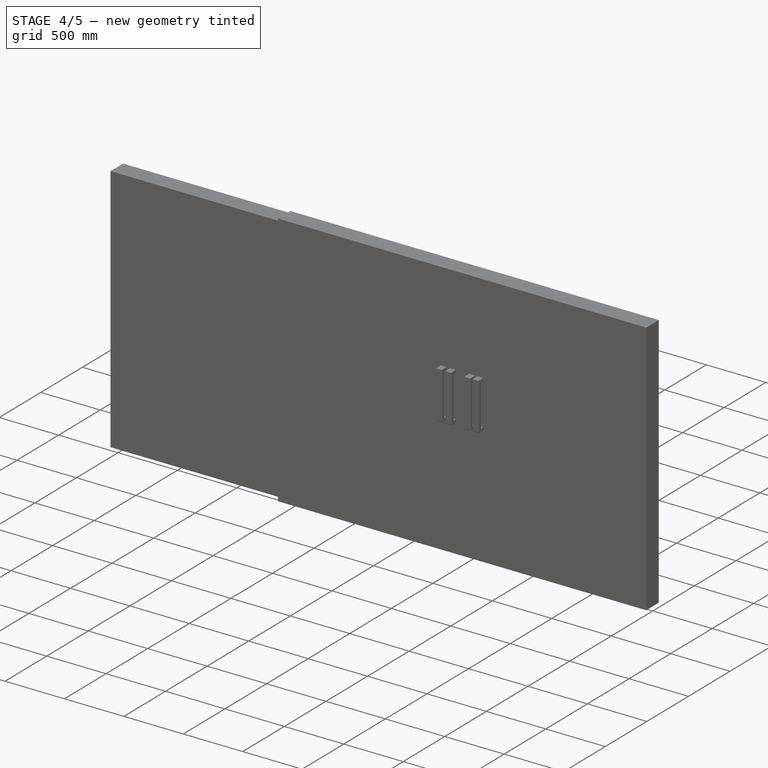
[diagram: stage 4 of 5 — iso view after this stage's code; geometry added in this stage tinted green]
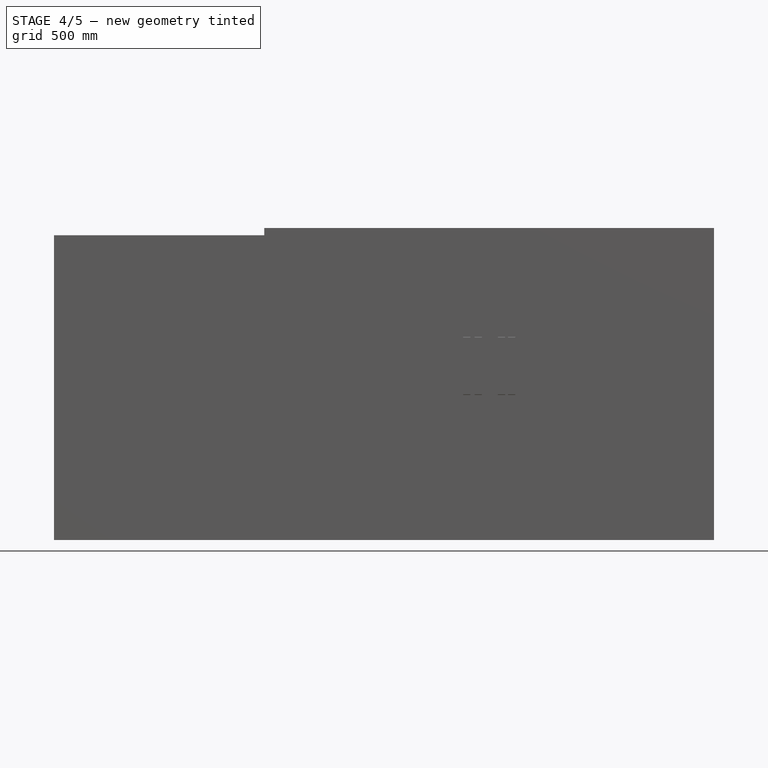
[diagram: stage 4 of 5 — front view after this stage's code; geometry added in this stage tinted green]
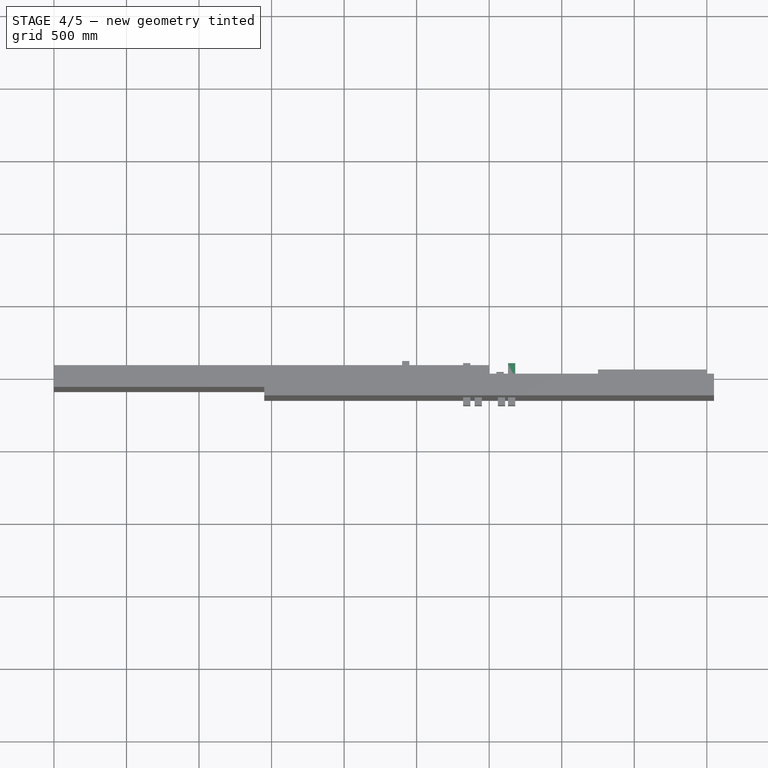
[diagram: stage 4 of 5 — top view after this stage's code; geometry added in this stage tinted green]
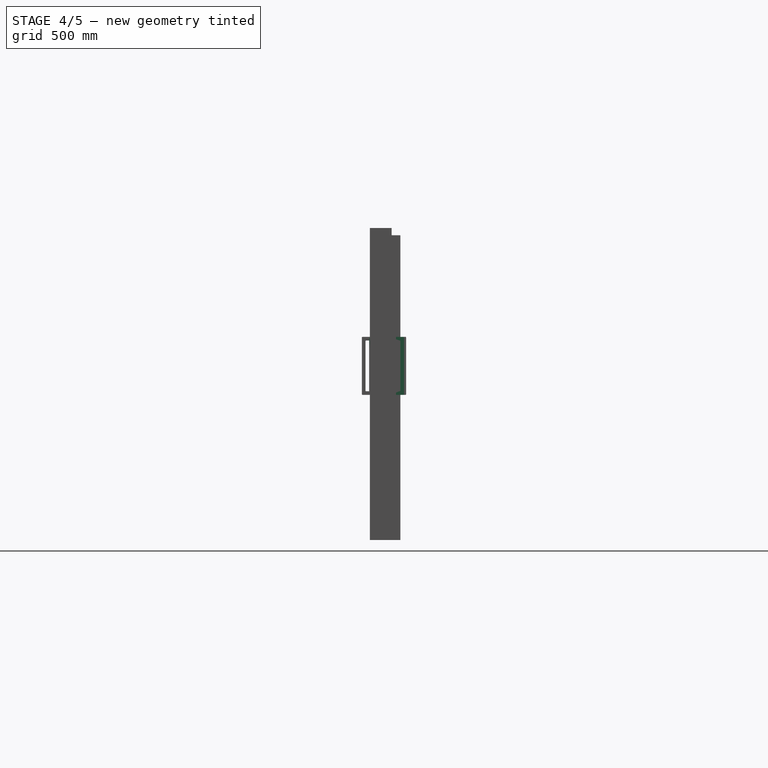
[diagram: stage 4 of 5 — right view after this stage's code; geometry added in this stage tinted green]
FEATURE [Sketcher::SketchObject] Sketch010
  FullyConstrained = true
  sketch-geometry (8):
    g0: LineSegment StartX=0 StartY=0 StartZ=0 EndX=20 EndY=0 EndZ=0
    g1: LineSegment StartX=110 StartY=40 StartZ=0 EndX=110 EndY=60 EndZ=0
    g2: LineSegment StartX=110 StartY=60 StartZ=0 EndX=10 EndY=60 EndZ=0
    g3: LineSegment StartX=0 StartY=50 StartZ=0 EndX=0 EndY=0 EndZ=0
    g4: LineSegment StartX=20 StartY=0 StartZ=0 EndX=20 EndY=30 EndZ=0
    g5: LineSegment StartX=30 StartY=40 StartZ=0 EndX=110 EndY=40 EndZ=0
    g6: ArcOfCircle CenterX=10 CenterY=50 CenterZ=0 NormalX=0 NormalY=0 NormalZ=1 AngleXU=0 Radius=10 StartAngle=1.5708 EndAngle=3.14159
    g7: ArcOfCircle CenterX=30 CenterY=30 CenterZ=0 NormalX=0 NormalY=0 NormalZ=1 AngleXU=0 Radius=10 StartAngle=1.5708 EndAngle=3.14159
  constraints (21):
    c: Coincident(g1,g2)
    c: Coincident(g3,g0)
    c: Horizontal(g0)
    c: Horizontal(g2)
    c: Vertical(g1)
    c: Vertical(g3)
    c: Coincident(g0,g-1)
    c: Horizontal(g5)
    c: Vertical(g4)
    c: Equal(g0,g1)
    c: DistanceY(g1,g1) = 20
    c: Coincident(g5,g1)
    c: Coincident(g4,g0)
    c: Tangent(g3,g6) = -1.5708
    c: Tangent(g2,g6) = -1.5708
    c: Tangent(g4,g7) = 1.5708
    c: Tangent(g5,g7) = 1.5708
    c: Equal(g7,g6)
    c: Radius(g6) = 10
    c: DistanceX(g2,g1) = 100
    c: DistanceY(g4,g4) = 30
FEATURE [Part::Extrusion] Extrude010  label="Macaneta005"
  Base = -> Sketch010
  Dir = (0,0,1)
  DirMode = 2
  FaceMakerClass = Part::FaceMakerBullseye
  LengthFwd = 10
  LengthRev = 0
  Solid = true
  Symmetric = false
FEATURE [Sketcher::SketchObject] Sketch011
  FullyConstrained = true
  Placement = pos=(0,0,0) rot=(1,0,0;1.5708rad)
  sketch-geometry (8):
    g0: LineSegment StartX=-20 StartY=13 StartZ=0 EndX=-20 EndY=-23 EndZ=0
    g1: LineSegment StartX=30 StartY=-23 StartZ=0 EndX=30 EndY=13 EndZ=0
    g2: LineSegment StartX=-13 StartY=20 StartZ=0 EndX=23 EndY=20 EndZ=0
    g3: LineSegment StartX=-13 StartY=-30 StartZ=0 EndX=23 EndY=-30 EndZ=0
    g4: ArcOfCircle CenterX=-13 CenterY=13 CenterZ=0 NormalX=0 NormalY=0 NormalZ=1 AngleXU=0 Radius=7 StartAngle=1.5708 EndAngle=3.14159
    g5: ArcOfCircle CenterX=23 CenterY=13 CenterZ=0 NormalX=0 NormalY=0 NormalZ=1 AngleXU=0 Radius=7 StartAngle=3.29e-14 EndAngle=1.5708
    g6: ArcOfCircle CenterX=23 CenterY=-23 CenterZ=0 NormalX=0 NormalY=0 NormalZ=1 AngleXU=0 Radius=7 StartAngle=4.71239 EndAngle=6.28319
    g7: ArcOfCircle CenterX=-13 CenterY=-23 CenterZ=0 NormalX=0 NormalY=0 NormalZ=1 AngleXU=0 Radius=7 StartAngle=3.14159 EndAngle=4.71239
  constraints (20):
    c: Vertical(g0)
    c: Horizontal(g2)
    c: Horizontal(g3)
    c: Tangent(g2,g4) = 1.5708
    c: Tangent(g0,g4) = -1.5708
    c: Tangent(g2,g5) = 1.5708
    c: Tangent(g1,g5) = -1.5708
    c: Tangent(g1,g6) = -1.5708
    c: Tangent(g3,g6) = -1.5708
    c: Tangent(g3,g7) = -1.5708
    c: Tangent(g0,g7) = -1.5708
    c: Equal(g4,g5)
    c: Equal(g6,g7)
    c: Equal(g7,g4)
    c: DistanceX(g0,g-1) = 20
    c: DistanceY(g-1,g2) = 20
    c: DistanceY(g3,g2) = 50
    c: DistanceX(g0,g1) = 50
    c: Vertical(g1)
    c: Radius(g5) = 7
FEATURE [Part::Extrusion] Extrude011  label="espelho001"
  Base = -> Sketch011
  Dir = (0,-1,2e-16)
  DirMode = 2
  FaceMakerClass = Part::FaceMakerBullseye
  LengthFwd = 5
  LengthRev = 0
  Solid = true
  Symmetric = false
FEATURE [Part::Compound] Compound003  label="maçaneta003"
  Links = -> [Extrude010,Extrude011]
  Placement = pos=(-1200,-70,1000) rot=(0,0,1;0rad)
  expr: .Placement.Base.x = -<<Tab_portas_correr _3 folhas_300x210>>.largura / 2 * 0.8
  expr: .Placement.Base.y = -<<Tab_portas_correr _3 folhas_300x210>>.especuraparede / 2 + 5mm
  expr: .Placement.Base.z = <<Tab_portas_correr _3 folhas_300x210>>.alturamacaneta
FEATURE [Sketcher::SketchObject] Sketch013
  FullyConstrained = true
  Placement = pos=(0,0,0) rot=(1,0,0;1.5708rad)
  expr: Constraints[19] = <<Tab_portas_correr _3 folhas_300x210>>.larguraesquadria
  expr: Constraints[20] = <<Tab_portas_correr _3 folhas_300x210>>.larguraesquadria
  expr: Constraints[21] = <<Tab_portas_correr _3 folhas_300x210>>.larguraesquadria
  expr: Constraints[22] = <<Tab_portas_correr _3 folhas_300x210>>.larguraesquadria
  expr: Constraints[8] = <<Tab_portas_correr _3 folhas_300x210>>.largura / 4
  expr: Constraints[9] = <<Tab_portas_correr _3 folhas_300x210>>.altura
  sketch-geometry (8):
    g0: LineSegment StartX=-750 StartY=2100 StartZ=0 EndX=0 EndY=2100 EndZ=0
    g1: LineSegment StartX=0 StartY=2100 StartZ=0 EndX=0 EndY=0 EndZ=0
    g2: LineSegment StartX=0 StartY=0 StartZ=0 EndX=-750 EndY=0 EndZ=0
    g3: LineSegment StartX=-750 StartY=0 StartZ=0 EndX=-750 EndY=2100 EndZ=0
    g4: LineSegment StartX=-700 StartY=50 StartZ=0 EndX=-50 EndY=50 EndZ=0
    g5: LineSegment StartX=-50 StartY=50 StartZ=0 EndX=-50 EndY=2050 EndZ=0
    g6: LineSegment StartX=-50 StartY=2050 StartZ=0 EndX=-700 EndY=2050 EndZ=0
    g7: LineSegment StartX=-700 StartY=2050 StartZ=0 EndX=-700 EndY=50 EndZ=0
  constraints (23):
    c: Coincident(g0,g1)
    c: Coincident(g1,g2)
    c: Coincident(g2,g3)
    c: Coincident(g3,g0)
    c: Horizontal(g0)
    c: Horizontal(g2)
    c: Vertical(g1)
    c: Vertical(g3)
    c: DistanceX(g0,g0) = 750
    c: DistanceY(g3,g3) = 2100
    c: Coincident(g1,g-1)
    c: Coincident(g4,g5)
    c: Coincident(g5,g6)
    c: Coincident(g6,g7)
    c: Coincident(g7,g4)
    c: Horizontal(g4)
    c: Horizontal(g6)
    c: Vertical(g5)
    c: Vertical(g7)
    c: DistanceY(g6,g0) = 50
    c: DistanceX(g0,g6) = 50
    c: DistanceX(g4,g1) = 50
    c: DistanceY(g1,g4) = 50
FEATURE [Part::Extrusion] Extrude013  label="esquadria"
  Base = -> Sketch013
  Dir = (0,-1,2e-16)
  DirMode = 2
  FaceMakerClass = Part::FaceMakerBullseye
  LengthFwd = 30
  LengthRev = 0
  Solid = true
  Symmetric = false
  expr: LengthFwd = <<Tab_portas_correr _3 folhas_300x210>>.largurafolha
FEATURE [Sketcher::SketchObject] Sketch014
  FullyConstrained = true
  Placement = pos=(0,0,0) rot=(1,0,0;1.5708rad)
  expr: Constraints[10] = <<Tab_portas_correr _3 folhas_300x210>>.altura - 2 * <<Tab_portas_correr _3 folhas_300x210>>.larguraesquadria
  expr: Constraints[11] = <<Tab_portas_correr _3 folhas_300x210>>.largura / 4 - 2 * <<Tab_portas_correr _3 folhas_300x210>>.larguraesquadria
  expr: Constraints[8] = <<Tab_portas_correr _3 folhas_300x210>>.larguraesquadria
  expr: Constraints[9] = <<Tab_portas_correr _3 folhas_300x210>>.larguraesquadria
  sketch-geometry (4):
    g0: LineSegment StartX=-700 StartY=50 StartZ=0 EndX=-50 EndY=50 EndZ=0
    g1: LineSegment StartX=-50 StartY=50 StartZ=0 EndX=-50 EndY=2050 EndZ=0
    g2: LineSegment StartX=-50 StartY=2050 StartZ=0 EndX=-700 EndY=2050 EndZ=0
    g3: LineSegment StartX=-700 StartY=2050 StartZ=0 EndX=-700 EndY=50 EndZ=0
  constraints (12):
    c: Coincident(g0,g1)
    c: Coincident(g1,g2)
    c: Coincident(g2,g3)
    c: Coincident(g3,g0)
    c: Horizontal(g0)
    c: Horizontal(g2)
    c: Vertical(g1)
    c: Vertical(g3)
    c: DistanceX(g0,g-1) = 50
    c: DistanceY(g-1,g0) = 50
    c: DistanceY(g3,g3) = 2000
    c: DistanceX(g2,g2) = 650
FEATURE [Part::Extrusion] Extrude014  label="Folha de vidro "
  Base = -> Sketch014
  Dir = (0,-1,2e-16)
  DirMode = 2
  FaceMakerClass = Part::FaceMakerBullseye
  LengthFwd = 10
  LengthRev = 0
  Placement = pos=(0,-15,0) rot=(0,0,1;0rad)
  Solid = true
  Symmetric = false
  expr: .Placement.Base.y = -<<Tab_portas_correr _3 folhas_300x210>>.largurafolha / 2
  expr: LengthFwd = 10mm
FEATURE [Sketcher::SketchObject] Sketch015
  FullyConstrained = true
  Placement = pos=(0,0,0) rot=(0.57735,0.57735,0.57735;2.0944rad)
  expr: Constraints[30] = .Constraints.especura
  sketch-geometry (12):
    g0: LineSegment StartX=0 StartY=0 StartZ=0 EndX=-95 EndY=0 EndZ=0
    g1: LineSegment StartX=-100 StartY=5 StartZ=0 EndX=-100 EndY=395 EndZ=0
    g2: LineSegment StartX=-95 StartY=400 StartZ=0 EndX=0 EndY=400 EndZ=0
    g3: LineSegment StartX=0 StartY=400 StartZ=0 EndX=0 EndY=375 EndZ=0
    g4: LineSegment StartX=0 StartY=375 StartZ=0 EndX=-70 EndY=375 EndZ=0
    g5: LineSegment StartX=-75 StartY=370 StartZ=0 EndX=-75 EndY=30 EndZ=0
    g6: LineSegment StartX=-70 StartY=25 StartZ=0 EndX=0 EndY=25 EndZ=0
    g7: LineSegment StartX=0 StartY=25 StartZ=0 EndX=0 EndY=0 EndZ=0
    g8: ArcOfCircle CenterX=-95 CenterY=395 CenterZ=0 NormalX=0 NormalY=0 NormalZ=1 AngleXU=0 Radius=5 StartAngle=1.5708 EndAngle=3.14159
    g9: ArcOfCircle CenterX=-95 CenterY=5 CenterZ=0 NormalX=0 NormalY=0 NormalZ=1 AngleXU=0 Radius=5 StartAngle=3.14159 EndAngle=4.71239
    g10: ArcOfCircle CenterX=-70 CenterY=370 CenterZ=0 NormalX=0 NormalY=0 NormalZ=1 AngleXU=0 Radius=5 StartAngle=1.5708 EndAngle=3.14159
    g11: ArcOfCircle CenterX=-70 CenterY=30 CenterZ=0 NormalX=0 NormalY=0 NormalZ=1 AngleXU=0 Radius=5 StartAngle=3.14159 EndAngle=4.71239
  constraints (31):
    c: Coincident(g2,g3)
    c: Coincident(g7,g0)
    c: Horizontal(g0)
    c: Horizontal(g2)
    c: Vertical(g1)
    c: Vertical(g3)
    c: Coincident(g0,g-1)
    c: Horizontal(g4)
    c: Horizontal(g6)
    c: Vertical(g5)
    c: Coincident(g3,g4)
    c: Equal(g3,g7)
    c: DistanceY(g3,g3) = 25  'especura'
    c: Coincident(g7,g6)
    c: PointOnObject(g6,g-2)
    c: PointOnObject(g2,g-2)
    c: Tangent(g2,g8) = 1.5708
    c: Tangent(g1,g8) = 1.5708
    c: Tangent(g0,g9) = 1.5708
    c: Tangent(g1,g9) = 1.5708
    c: Equal(g9,g8)
    c: Radius(g8) = 5
    c: Tangent(g4,g10) = -1.5708
    c: Tangent(g5,g10) = -1.5708
    c: Tangent(g6,g11) = -1.5708
    c: Tangent(g5,g11) = -1.5708
    c: Equal(g9,g11)
    c: Equal(g10,g8)
    c: DistanceY(g0,g2) = 400
    c: DistanceX(g1,g0) = 100
    c: DistanceX(g1,g5) = 25
FEATURE [Part::Extrusion] Extrude015  label="Macaneta009"
  Base = -> Sketch015
  Dir = (1,0,0)
  DirMode = 2
  FaceMakerClass = Part::FaceMakerBullseye
  LengthFwd = 50
  LengthRev = 0
  Placement = pos=(130,-55,1000) rot=(0,0,1;0rad)
  Solid = true
  Symmetric = false
  expr: .Placement.Base.y = -<<Tab_portas_correr _3 folhas_300x210>>.especuraparede / 2 + <<Tab_portas_correr _3 folhas_300x210>>.largurafolha - 10mm
  expr: .Placement.Base.z = <<Tab_portas_correr _3 folhas_300x210>>.alturamacaneta
FEATURE [Part::FeaturePython] Clone006  label="Macaneta006"  # Draft clone (typed FeaturePython)
  AttacherType = Attacher::AttachEngine3D
  Fuse = false
  Objects = -> [Extrude015]
  Placement = pos=(-180,-55,1000) rot=(0,0,1;0rad)
  Scale = (1,1,1)
  expr: .Placement.Base.y = -<<Tab_portas_correr _3 folhas_300x210>>.especuraparede / 2 + <<Tab_portas_correr _3 folhas_300x210>>.largurafolha - 10mm
  expr: .Placement.Base.z = <<Tab_portas_correr _3 folhas_300x210>>.alturamacaneta
FEATURE [Part::FeaturePython] Clone007  label="Macaneta007"  # Draft clone (typed FeaturePython)
  AttacherType = Attacher::AttachEngine3D
  Fuse = false
  Objects = -> [Clone006]
  Placement = pos=(-130,-15,1000) rot=(0,0,1;3.14159rad)
  Scale = (1,1,1)
  expr: .Placement.Base.y = -<<Tab_portas_correr _3 folhas_300x210>>.largurafolha / 2
  expr: .Placement.Base.z = <<Tab_portas_correr _3 folhas_300x210>>.alturamacaneta
FEATURE [Part::FeaturePython] Clone008  label="Macaneta008"  # Draft clone (typed FeaturePython)
  AttacherType = Attacher::AttachEngine3D
  Fuse = false
  Objects = -> [Clone007]
  Placement = pos=(180,-15,1000) rot=(0,0,1;3.14159rad)
  Scale = (1,1,1)
  expr: .Placement.Base.y = -<<Tab_portas_correr _3 folhas_300x210>>.largurafolha / 2
  expr: .Placement.Base.z = <<Tab_portas_correr _3 folhas_300x210>>.alturamacaneta
FEATURE [Part::Extrusion] Extrude016  label="Folha de vidro 001"
  Base = -> Sketch014
  Dir = (0,-1,2e-16)
  DirMode = 2
  FaceMakerClass = Part::FaceMakerBullseye
  LengthFwd = 10
  LengthRev = 0
  Placement = pos=(750,-15,0) rot=(0,0,1;0rad)
  Solid = true
  Symmetric = false
  expr: .Placement.Base.x = <<Tab_portas_correr _3 folhas_300x210>>.largura / 4
  expr: .Placement.Base.y = -<<Tab_portas_correr _3 folhas_300x210>>.largurafolha / 2
  expr: LengthFwd = 10mm
FEATURE [Part::Extrusion] Extrude017  label="esquadria001"
  Base = -> Sketch013
  Dir = (0,-1,2e-16)
  DirMode = 2
  FaceMakerClass = Part::FaceMakerBullseye
  LengthFwd = 30
  LengthRev = 0
  Placement = pos=(750,0,0) rot=(0,0,1;0rad)
  Solid = true
  Symmetric = false
  expr: .Placement.Base.x = <<Tab_portas_correr _3 folhas_300x210>>.largura / 4
  expr: LengthFwd = <<Tab_portas_correr _3 folhas_300x210>>.largurafolha
FEATURE [Part::Compound] Compound005  label="Porta de correr 4 folhas "
  Links = -> [Extrude013,Extrude014,Clone006,Clone007,Clone008,Extrude015,Extrude016,Extrude017,Extrude018,Extrude019,Extrude020,Extrude021]
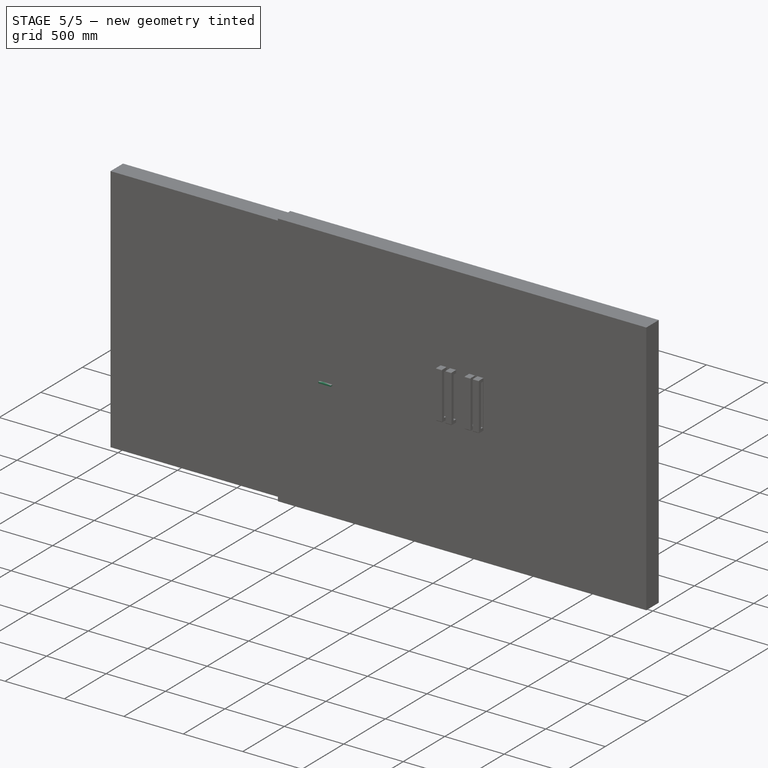
[diagram: stage 5 of 5 — iso view after this stage's code; geometry added in this stage tinted green]
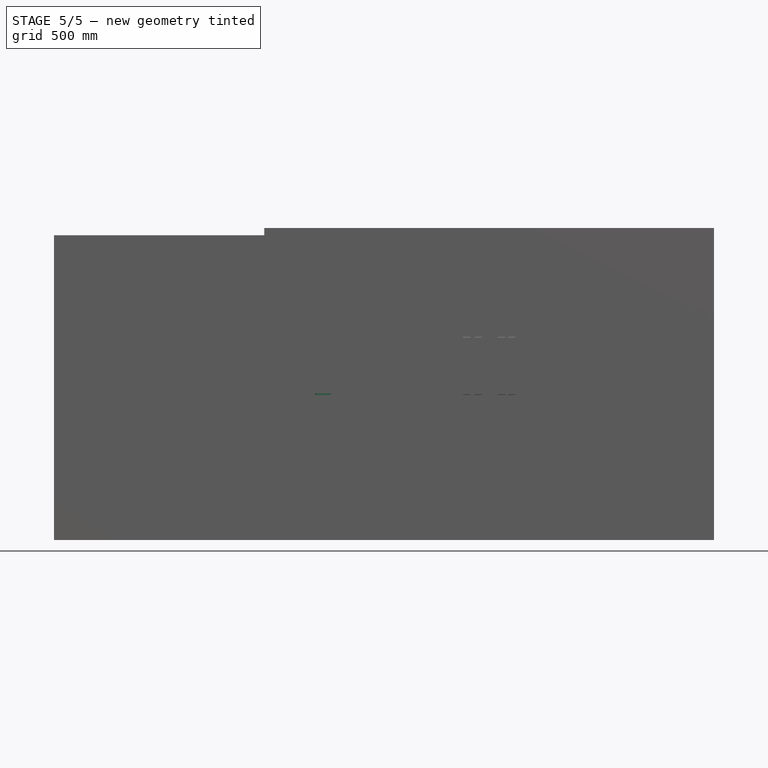
[diagram: stage 5 of 5 — front view after this stage's code; geometry added in this stage tinted green]
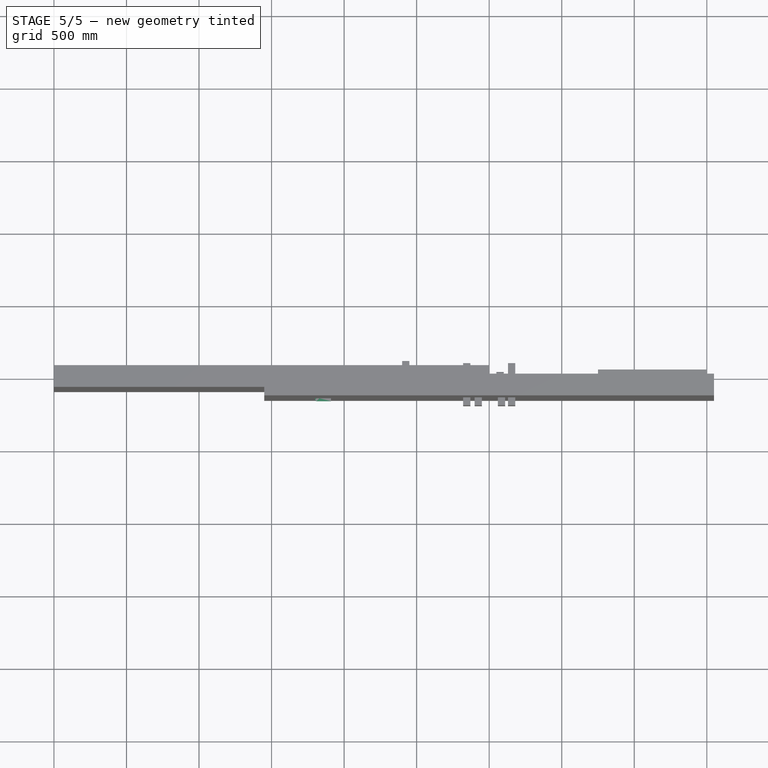
[diagram: stage 5 of 5 — top view after this stage's code; geometry added in this stage tinted green]
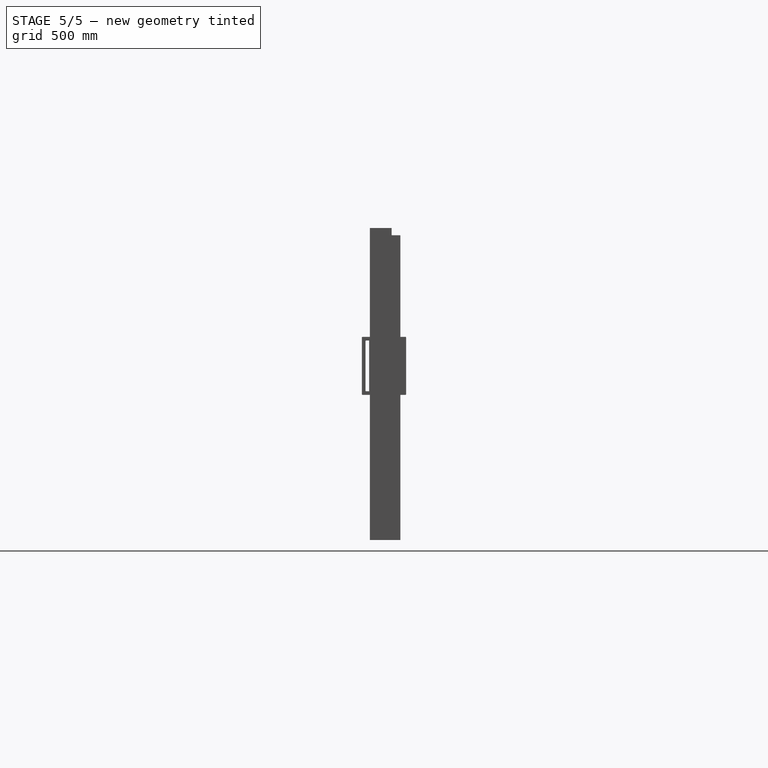
[diagram: stage 5 of 5 — right view after this stage's code; geometry added in this stage tinted green]
FEATURE [Sketcher::SketchObject] Sketch004  label="portal003"
  FullyConstrained = true
  Placement = pos=(0,0,0) rot=(1,0,0;1.5708rad)
  expr: Constraints[19] = <<Tab_portas_correr _3 folhas_300x210>>.larguraportal
  expr: Constraints[20] = <<Tab_portas_correr _3 folhas_300x210>>.larguraportal
  expr: Constraints[6] = <<Tab_portas_correr _3 folhas_300x210>>.largura
  expr: Constraints[7] = <<Tab_portas_correr _3 folhas_300x210>>.altura
  sketch-geometry (8):
    g0: LineSegment StartX=1500 StartY=0 StartZ=0 EndX=1500 EndY=2100 EndZ=0
    g1: LineSegment StartX=1500 StartY=2100 StartZ=0 EndX=-1500 EndY=2100 EndZ=0
    g2: LineSegment StartX=-1500 StartY=2100 StartZ=0 EndX=-1500 EndY=0 EndZ=0
    g3: LineSegment StartX=-1500 StartY=-3.8e-15 StartZ=0 EndX=-1550 EndY=-3.8e-15 EndZ=0
    g4: LineSegment StartX=-1550 StartY=-3.8e-15 StartZ=0 EndX=-1550 EndY=2150 EndZ=0
    g5: LineSegment StartX=-1550 StartY=2150 StartZ=0 EndX=1550 EndY=2150 EndZ=0
    g6: LineSegment StartX=1550 StartY=2150 StartZ=0 EndX=1550 EndY=0 EndZ=0
    g7: LineSegment StartX=1550 StartY=0 StartZ=0 EndX=1500 EndY=0 EndZ=0
  constraints (23):
    c: Coincident(g0,g1)
    c: Coincident(g1,g2)
    c: Horizontal(g1)
    c: Vertical(g0)
    c: Vertical(g2)
    c: Symmetric(g2,g0,g-1)
    c: DistanceX(g1,g1) = 3000
    c: DistanceY(g2,g2) = 2100
    c: Coincident(g4,g3)
    c: Vertical(g4)
    c: Coincident(g5,g4)
    c: Horizontal(g5)
    c: Coincident(g6,g5)
    c: PointOnObject(g6,g-1)
    c: Vertical(g6)
    c: Coincident(g7,g6)
    c: Horizontal(g7)
    c: Equal(g3,g7)
    c: Horizontal(g3)
    c: DistanceX(g3,g3) = 50
    c: DistanceY(g1,g4) = 50
    c: Coincident(g2,g3)
    c: Coincident(g0,g7)
FEATURE [Part::Extrusion] Extrude004  label="Portal001"
  Base = -> Sketch004
  Dir = (0,-1,2e-16)
  DirMode = 2
  FaceMakerClass = Part::FaceMakerBullseye
  LengthFwd = 150
  LengthRev = 0
  Solid = true
  Symmetric = false
  expr: LengthFwd = <<Tab_portas_correr _3 folhas_300x210>>.especuraparede
FEATURE [Sketcher::SketchObject] Sketch005  label="portal004"
  FullyConstrained = true
  Placement = pos=(0,0,0) rot=(1,0,0;1.5708rad)
  expr: Constraints[8] = <<Tab_portas_correr _3 folhas_300x210>>.largura
  expr: Constraints[9] = <<Tab_portas_correr _3 folhas_300x210>>.altura
  sketch-geometry (4):
    g0: LineSegment StartX=1500 StartY=0 StartZ=0 EndX=-1500 EndY=0 EndZ=0
    g1: LineSegment StartX=-1500 StartY=0 StartZ=0 EndX=-1500 EndY=2100 EndZ=0
    g2: LineSegment StartX=-1500 StartY=2100 StartZ=0 EndX=1500 EndY=2100 EndZ=0
    g3: LineSegment StartX=1500 StartY=2100 StartZ=0 EndX=1500 EndY=0 EndZ=0
  constraints (11):
    c: Coincident(g0,g1)
    c: Coincident(g1,g2)
    c: Coincident(g2,g3)
    c: Coincident(g3,g0)
    c: Horizontal(g0)
    c: Horizontal(g2)
    c: Vertical(g1)
    c: Vertical(g3)
    c: DistanceX(g2,g2) = 3000
    c: DistanceY(g1,g1) = 2100
    c: Symmetric(g0,g0,g-1)
FEATURE [Part::Extrusion] Extrude005  label="Folha002"
  Base = -> Sketch005
  Dir = (0,-1,2e-16)
  DirMode = 2
  FaceMakerClass = Part::FaceMakerBullseye
  LengthFwd = 30
  LengthRev = 0
  Placement = pos=(0,-75,0) rot=(0,0,1;0rad)
  Solid = true
  Symmetric = false
  expr: .Placement.Base.y = -<<Tab_portas_correr _3 folhas_300x210>>.especuraparede / 2
  expr: LengthFwd = <<Tab_portas_correr _3 folhas_300x210>>.largurafolha
FEATURE [Sketcher::SketchObject] Sketch006
  FullyConstrained = true
  sketch-geometry (8):
    g0: LineSegment StartX=0 StartY=0 StartZ=0 EndX=20 EndY=0 EndZ=0
    g1: LineSegment StartX=110 StartY=40 StartZ=0 EndX=110 EndY=60 EndZ=0
    g2: LineSegment StartX=110 StartY=60 StartZ=0 EndX=10 EndY=60 EndZ=0
    g3: LineSegment StartX=0 StartY=50 StartZ=0 EndX=0 EndY=0 EndZ=0
    g4: LineSegment StartX=20 StartY=0 StartZ=0 EndX=20 EndY=30 EndZ=0
    g5: LineSegment StartX=30 StartY=40 StartZ=0 EndX=110 EndY=40 EndZ=0
    g6: ArcOfCircle CenterX=10 CenterY=50 CenterZ=0 NormalX=0 NormalY=0 NormalZ=1 AngleXU=0 Radius=10 StartAngle=1.5708 EndAngle=3.14159
    g7: ArcOfCircle CenterX=30 CenterY=30 CenterZ=0 NormalX=0 NormalY=0 NormalZ=1 AngleXU=0 Radius=10 StartAngle=1.5708 EndAngle=3.14159
  constraints (21):
    c: Coincident(g1,g2)
    c: Coincident(g3,g0)
    c: Horizontal(g0)
    c: Horizontal(g2)
    c: Vertical(g1)
    c: Vertical(g3)
    c: Coincident(g0,g-1)
    c: Horizontal(g5)
    c: Vertical(g4)
    c: Equal(g0,g1)
    c: DistanceY(g1,g1) = 20
    c: Coincident(g5,g1)
    c: Coincident(g4,g0)
    c: Tangent(g3,g6) = -1.5708
    c: Tangent(g2,g6) = -1.5708
    c: Tangent(g4,g7) = 1.5708
    c: Tangent(g5,g7) = 1.5708
    c: Equal(g7,g6)
    c: Radius(g6) = 10
    c: DistanceX(g2,g1) = 100
    c: DistanceY(g4,g4) = 30
FEATURE [Part::Extrusion] Extrude006  label="Macaneta004"
  Base = -> Sketch006
  Dir = (0,0,1)
  DirMode = 2
  FaceMakerClass = Part::FaceMakerBullseye
  LengthFwd = 10
  LengthRev = 0
  Solid = true
  Symmetric = false
FEATURE [Sketcher::SketchObject] Sketch007
  FullyConstrained = true
  Placement = pos=(0,0,0) rot=(1,0,0;1.5708rad)
  sketch-geometry (4):
    g0: ArcOfCircle CenterX=10 CenterY=40 CenterZ=0 NormalX=0 NormalY=0 NormalZ=1 AngleXU=0 Radius=25 StartAngle=1.7e-15 EndAngle=3.14159
    g1: ArcOfCircle CenterX=10 CenterY=-110 CenterZ=0 NormalX=0 NormalY=0 NormalZ=1 AngleXU=0 Radius=25 StartAngle=3.14159 EndAngle=6.28319
    g2: LineSegment StartX=-15 StartY=40 StartZ=0 EndX=-15 EndY=-110 EndZ=0
    g3: LineSegment StartX=35 StartY=-110 StartZ=0 EndX=35 EndY=40 EndZ=0
  constraints (10):
    c: Tangent(g0,g2) = -1.5708
    c: Tangent(g2,g1) = -1.5708
    c: Tangent(g1,g3) = -1.5708
    c: Tangent(g3,g0) = -1.5708
    c: Equal(g0,g1)
    c: Vertical(g2)
    c: DistanceX(g1,g1) = 50
    c: DistanceY(g2,g2) = 150
    c: DistanceY(g-1,g0) = 40
    c: DistanceX(g-1,g0) = 10
FEATURE [Part::Extrusion] Extrude007  label="espelho"
  Base = -> Sketch007
  Dir = (0,-1,2e-16)
  DirMode = 2
  FaceMakerClass = Part::FaceMakerBullseye
  LengthFwd = 5
  LengthRev = 0
  Solid = true
  Symmetric = false
FEATURE [Part::Compound] Compound001  label="maçaneta"
  Links = -> [Extrude006,Extrude007]
  Placement = pos=(-1200,-70,1000) rot=(0,0,1;0rad)
  expr: .Placement.Base.x = -<<Tab_portas_correr _3 folhas_300x210>>.largura / 2 * 0.8
  expr: .Placement.Base.y = -<<Tab_portas_correr _3 folhas_300x210>>.especuraparede / 2 + 5mm
  expr: .Placement.Base.z = <<Tab_portas_correr _3 folhas_300x210>>.alturamacaneta
FEATURE [Part::Mirroring] mirror  label="maçaneta (espelhado) "
  Base = (-400,-90,2100)
  Normal = (0,-1,2e-16)
  Source = -> Compound001
FEATURE [Part::FeaturePython] Clone004  label="maçaneta001"  # Draft clone (typed FeaturePython)
  AttacherType = Attacher::AttachEngine3D
  Fuse = false
  Objects = -> [Compound001]
  Placement = pos=(-320,-70,1000) rot=(0,0,1;0rad)
  Scale = (1,1,1)
FEATURE [Part::Compound] Compound002  label="Porta de abrir 1 folha"
  Links = -> [Extrude004,Extrude005,Clone004,mirror]
FEATURE [Sketcher::SketchObject] Sketch009  label="portal006"
  FullyConstrained = true
  Placement = pos=(0,0,0) rot=(1,0,0;1.5708rad)
  expr: Constraints[8] = <<Tab_portas_correr _3 folhas_300x210>>.largura
  expr: Constraints[9] = <<Tab_portas_correr _3 folhas_300x210>>.altura
  sketch-geometry (4):
    g0: LineSegment StartX=1500 StartY=0 StartZ=0 EndX=-1500 EndY=0 EndZ=0
    g1: LineSegment StartX=-1500 StartY=0 StartZ=0 EndX=-1500 EndY=2100 EndZ=0
    g2: LineSegment StartX=-1500 StartY=2100 StartZ=0 EndX=1500 EndY=2100 EndZ=0
    g3: LineSegment StartX=1500 StartY=2100 StartZ=0 EndX=1500 EndY=0 EndZ=0
  constraints (11):
    c: Coincident(g0,g1)
    c: Coincident(g1,g2)
    c: Coincident(g2,g3)
    c: Coincident(g3,g0)
    c: Horizontal(g0)
    c: Horizontal(g2)
    c: Vertical(g1)
    c: Vertical(g3)
    c: DistanceX(g2,g2) = 3000
    c: DistanceY(g1,g1) = 2100
    c: Symmetric(g0,g0,g-1)
FEATURE [Part::Extrusion] Extrude009  label="Folha003"
  Base = -> Sketch009
  Dir = (0,-1,2e-16)
  DirMode = 2
  FaceMakerClass = Part::FaceMakerBullseye
  LengthFwd = 30
  LengthRev = 0
  Placement = pos=(0,-75,0) rot=(0,0,1;0rad)
  Solid = true
  Symmetric = false
  expr: .Placement.Base.y = -<<Tab_portas_correr _3 folhas_300x210>>.especuraparede / 2
  expr: LengthFwd = <<Tab_portas_correr _3 folhas_300x210>>.largurafolha
FEATURE [Part::FeaturePython] Clone005  label="maçaneta002"  # Draft clone (typed FeaturePython)
  AttacherType = Attacher::AttachEngine3D
  Fuse = false
  Objects = -> [Compound003]
  Placement = pos=(-1200,-70,1000) rot=(0,0,1;0rad)
  Scale = (1,1,1)
  expr: .Placement.Base.x = -<<Tab_portas_correr _3 folhas_300x210>>.largura / 2 * 0.8
  expr: .Placement.Base.y = -<<Tab_portas_correr _3 folhas_300x210>>.especuraparede / 2 + 5mm
  expr: .Placement.Base.z = <<Tab_portas_correr _3 folhas_300x210>>.alturamacaneta
FEATURE [Part::Mirroring] mirror001  label="maçaneta002 (espelhado) "
  Base = (-1000,-90,3.3e-15)
  Normal = (0,-1,0)
  Source = -> Clone005
FEATURE [Part::Compound] Compound004  label="Porta de vidro"
  Links = -> [mirror001,Extrude009,Compound003]
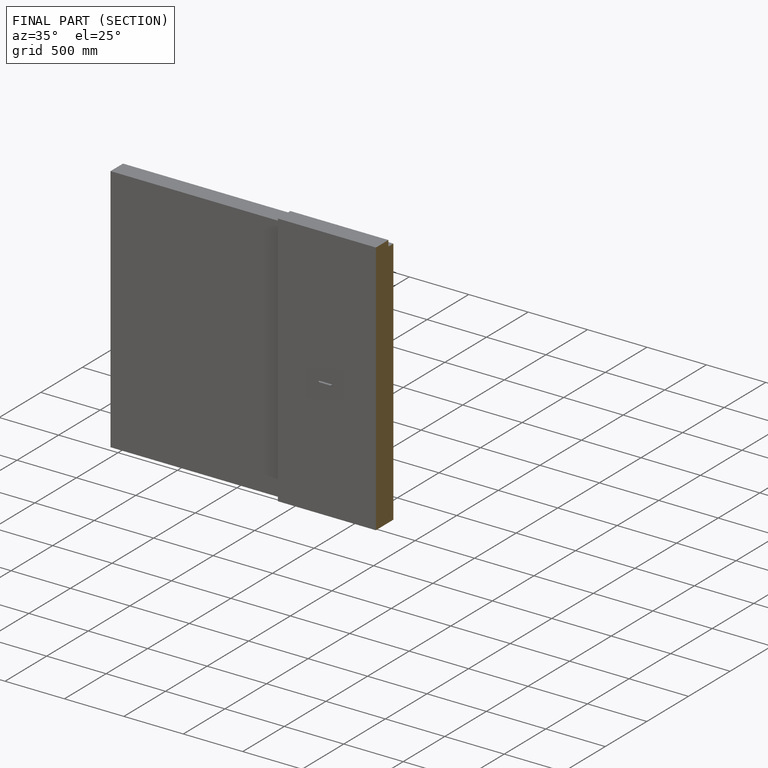
[diagram: finished part — half-section view (interior)]
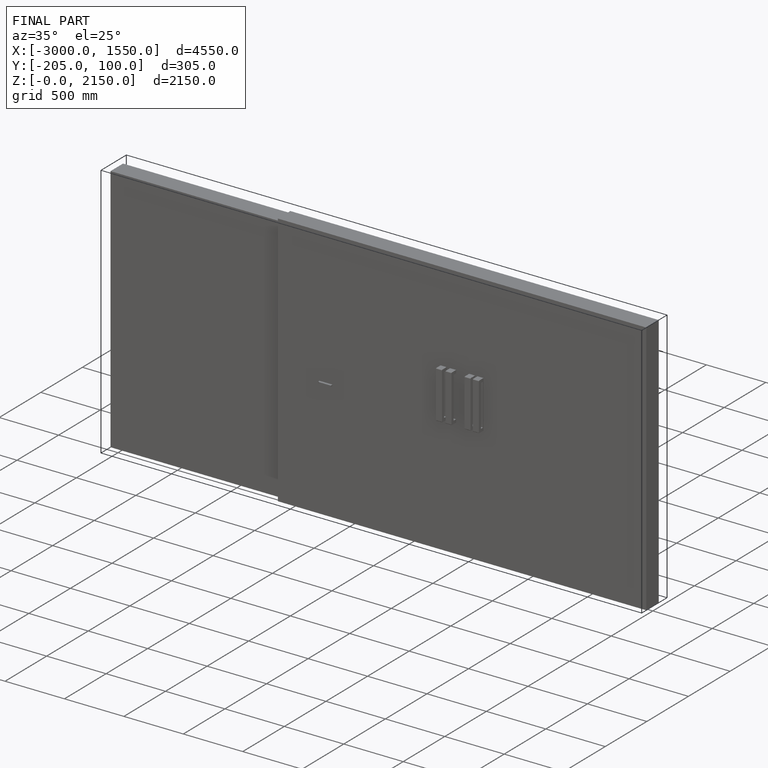
[diagram: finished part — iso view with bounding-box wireframe]
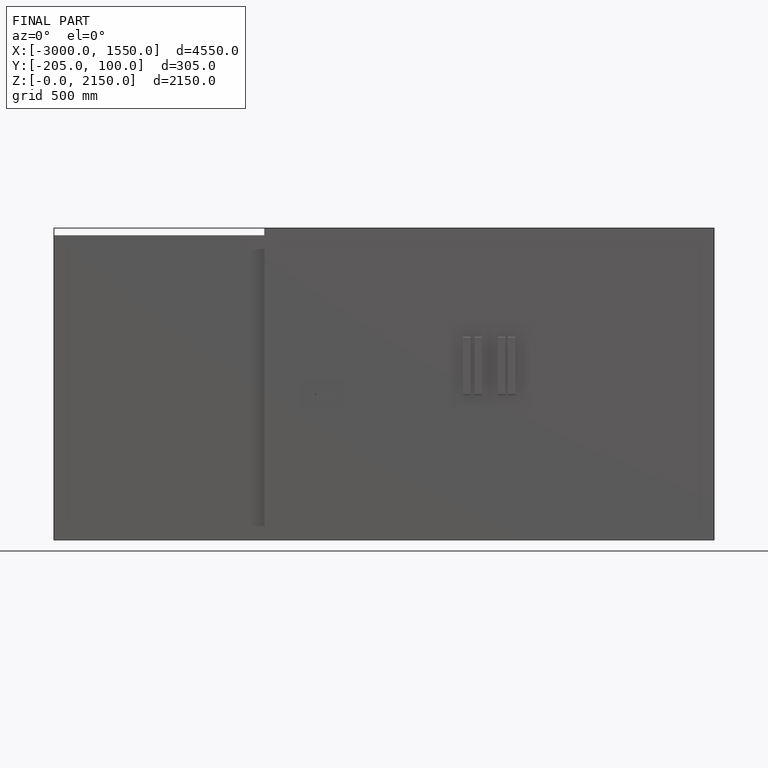
[diagram: finished part — front view with bounding-box wireframe]
